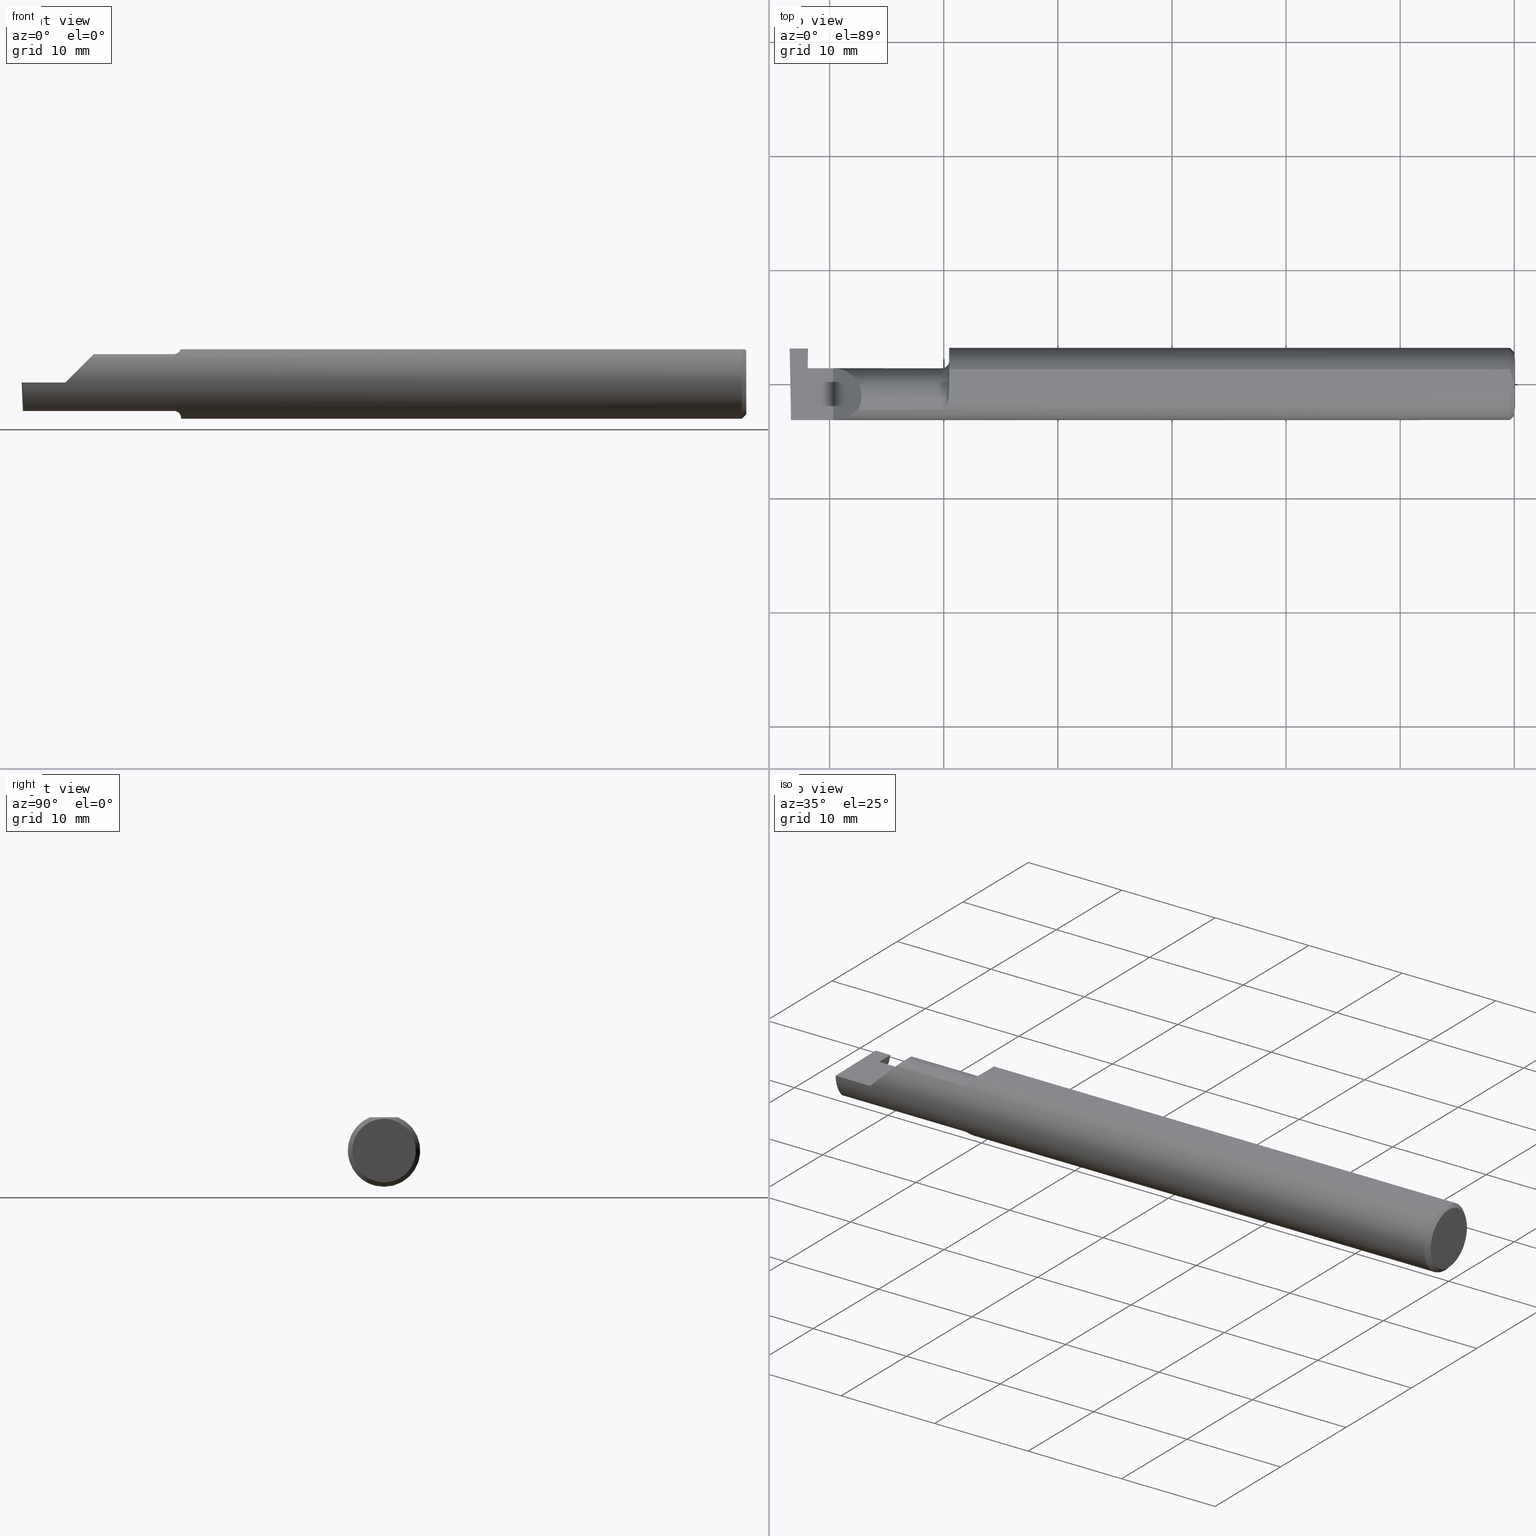
[diagram: canonical four-view strip — front | top / right | iso, engineering-drawing reading convention]
A machine part, canonical four-view strip (front | top / right | iso — engineering-drawing reading convention). The complete STEP part file that produces these views, byte-faithful:
ISO-10303-21;
HEADER;
FILE_DESCRIPTION (( 'STEP AP203' ),
    '1' );
FILE_NAME ('224741-LHGT062Q-8.STEP',
    '2025-07-01T21:48:16',
    ( '' ),
    ( '' ),
    'SwSTEP 2.0',
    'SolidWorks 2024',
    '' );
FILE_SCHEMA (( 'CONFIG_CONTROL_DESIGN' ));
ENDSEC;

DATA;
#1 = DIRECTION ( 'NONE',  ( 0.03699114979480017801, 0.7066228325057372084, 0.7066228325057346549 ) ) ;
#2 = LINE ( 'NONE', #576, #538 ) ;
#3 = ORIENTED_EDGE ( 'NONE', *, *, #304, .T. ) ;
#4 = AXIS2_PLACEMENT_3D ( 'NONE', #770, #574, #775 ) ;
#5 = ORIENTED_EDGE ( 'NONE', *, *, #374, .F. ) ;
#6 = DIRECTION ( 'NONE',  ( 1.224646799147352221E-16, 0.000000000000000000, -1.000000000000000000 ) ) ;
#7 = APPROVAL_ROLE ( '' ) ;
#8 = CARTESIAN_POINT ( 'NONE',  ( -0.01499999999999987454, 0.04895916665957496944, 0.1148500000000000076 ) ) ;
#9 = EDGE_LOOP ( 'NONE', ( #520, #484, #349, #774 ) ) ;
#10 = TOROIDAL_SURFACE ( 'NONE', #614, 0.1230000000000000121, 0.02499999999999980016 ) ;
#11 = EDGE_LOOP ( 'NONE', ( #499, #471, #781, #738, #255, #233 ) ) ;
#12 = LINE ( 'NONE', #619, #134 ) ;
#13 = ORIENTED_EDGE ( 'NONE', *, *, #570, .T. ) ;
#14 = DIRECTION ( 'NONE',  ( 1.000000000000000000, -0.000000000000000000, -0.000000000000000000 ) ) ;
#15 = EDGE_CURVE ( 'NONE', #82, #784, #100, .T. ) ;
#16 = ORIENTED_EDGE ( 'NONE', *, *, #414, .T. ) ;
#17 = VECTOR ( 'NONE', #666, 39.37007874015748143 ) ;
#18 = DIRECTION ( 'NONE',  ( 0.000000000000000000, 0.000000000000000000, 1.000000000000000000 ) ) ;
#19 = ORIENTED_EDGE ( 'NONE', *, *, #758, .T. ) ;
#20 = LINE ( 'NONE', #257, #42 ) ;
#21 = APPROVAL_STATUS ( 'not_yet_approved' ) ;
#22 = CARTESIAN_POINT ( 'NONE',  ( -1.964990549600692527, -0.08554147198584205469, 0.09096407607062373391 ) ) ;
#23 = ORIENTED_EDGE ( 'NONE', *, *, #515, .T. ) ;
#24 = DIRECTION ( 'NONE',  ( 1.000000000000000000, -0.000000000000000000, -0.000000000000000000 ) ) ;
#25 = ADVANCED_FACE ( 'NONE', ( #695 ), #668, .F. ) ;
#26 = DIRECTION ( 'NONE',  ( 1.000000000000000000, -0.000000000000000000, -0.000000000000000000 ) ) ;
#27 = APPLICATION_CONTEXT ( 'configuration controlled 3d designs of mechanical parts and assemblies' ) ;
#28 = CARTESIAN_POINT ( 'NONE',  ( -2.437982208140548224, -2.385405252369068752, -0.02552319679206715292 ) ) ;
#29 =( BOUNDED_CURVE ( )  B_SPLINE_CURVE ( 3, ( #317, #561, #497, #271 ),
 .UNSPECIFIED., .F., .F. ) 
 B_SPLINE_CURVE_WITH_KNOTS ( ( 4, 4 ),
 ( 4.463962699426422986, 4.711356644242685299 ),
 .UNSPECIFIED. ) 
 CURVE ( )  GEOMETRIC_REPRESENTATION_ITEM ( )  RATIONAL_B_SPLINE_CURVE ( ( 1.000000000000000000, 0.9949061863228998437, 0.9949061863228998437, 1.000000000000000000 ) ) 
 REPRESENTATION_ITEM ( '' )  );
#30 = CARTESIAN_POINT ( 'NONE',  ( -2.437982208140546447, 0.05416464901751173039, -0.02403639734835132102 ) ) ;
#31 = EDGE_CURVE ( 'NONE', #428, #485, #327, .T. ) ;
#32 = CARTESIAN_POINT ( 'NONE',  ( -2.350000000000000089, 0.05414999999999988572, 1.836970198721028825E-17 ) ) ;
#33 = AXIS2_PLACEMENT_3D ( 'NONE', #783, #299, #667 ) ;
#34 = CYLINDRICAL_SURFACE ( 'NONE', #408, 0.09800000000000000377 ) ;
#35 = EDGE_CURVE ( 'NONE', #566, #480, #326, .T. ) ;
#36 = DIRECTION ( 'NONE',  ( 7.219510806010324627E-16, 0.9999998142845092364, 0.0006094513490878470654 ) ) ;
#37 = LOCAL_TIME ( 14, 48, 16.00000000000000000, #357 ) ;
#38 = CARTESIAN_POINT ( 'NONE',  ( -1.960226514481664850, -0.07966992494485836129, -0.09623747760188229583 ) ) ;
#39 = LINE ( 'NONE', #390, #105 ) ;
#40 = DIRECTION ( 'NONE',  ( 1.224646799147353207E-16, -1.000000000000000000, 0.000000000000000000 ) ) ;
#41 = CIRCLE ( 'NONE', #286, 0.1248500000000000026 ) ;
#42 = VECTOR ( 'NONE', #200, 39.37007874015748854 ) ;
#43 = CARTESIAN_POINT ( 'NONE',  ( -2.437982208140546891, 0.05115612325138190614, -0.02403823089877876046 ) ) ;
#44 = CARTESIAN_POINT ( 'NONE',  ( -1.951227715916084682, -0.04883822427082837314, -0.1150249279297937549 ) ) ;
#45 = ORIENTED_EDGE ( 'NONE', *, *, #404, .T. ) ;
#46 = PLANE ( 'NONE',  #467 ) ;
#47 = EDGE_CURVE ( 'NONE', #480, #431, #573, .T. ) ;
#48 = DIRECTION ( 'NONE',  ( 0.000000000000000000, 0.000000000000000000, 1.000000000000000000 ) ) ;
#49 = DIMENSIONAL_EXPONENTS ( 1.000000000000000000, 0.000000000000000000, 0.000000000000000000, 0.000000000000000000, 0.000000000000000000, 0.000000000000000000, 0.000000000000000000 ) ;
#50 = ORIENTED_EDGE ( 'NONE', *, *, #106, .F. ) ;
#51 = DIRECTION ( 'NONE',  ( 0.000000000000000000, 0.000000000000000000, 1.000000000000000000 ) ) ;
#52 = DIRECTION ( 'NONE',  ( -0.9991632577875564358, -2.492636860404767688E-05, 0.04089967806759802621 ) ) ;
#53 = ORIENTED_EDGE ( 'NONE', *, *, #204, .T. ) ;
#54 = CARTESIAN_POINT ( 'NONE',  ( -2.494835769263151537, -0.1248351010429638308, -0.03262966116142157480 ) ) ;
#55 = CARTESIAN_POINT ( 'NONE',  ( -2.437982208140548224, -2.385405252369068752, -0.02552319679206715292 ) ) ;
#56 = EDGE_CURVE ( 'NONE', #135, #236, #456, .T. ) ;
#57 = ORIENTED_EDGE ( 'NONE', *, *, #340, .T. ) ;
#58 = CARTESIAN_POINT ( 'NONE',  ( -0.01499999999999999944, 0.000000000000000000, 0.000000000000000000 ) ) ;
#59 = CARTESIAN_POINT ( 'NONE',  ( -1.974999999999999867, -0.04385000000000001397, 0.09800000000000000377 ) ) ;
#60 = CARTESIAN_POINT ( 'NONE',  ( -2.350000000000000089, -0.2000000000000000111, 1.836970198721028825E-17 ) ) ;
#61 = EDGE_LOOP ( 'NONE', ( #112, #383, #363, #209 ) ) ;
#62 = B_SPLINE_CURVE_WITH_KNOTS ( 'NONE', 3,
 ( #584, #279, #514, #396 ),
 .UNSPECIFIED., .F., .F.,
 ( 4, 4 ),
 ( 0.001640801893433564652, 0.002088276671954478626 ),
 .UNSPECIFIED. ) ;
#63 = APPROVAL ( #693, 'UNSPECIFIED' ) ;
#64 = PLANE ( 'NONE',  #596 ) ;
#65 = PERSON_AND_ORGANIZATION ( #123, #377 ) ;
#66 = DIRECTION ( 'NONE',  ( -1.000000000000000000, 0.000000000000000000, 0.000000000000000000 ) ) ;
#67 = VECTOR ( 'NONE', #690, 39.37007874015748143 ) ;
#68 = ORIENTED_EDGE ( 'NONE', *, *, #470, .T. ) ;
#69 = FACE_OUTER_BOUND ( 'NONE', #11, .T. ) ;
#70 = DIRECTION ( 'NONE',  ( -0.03490478697967554916, 0.000000000000000000, -0.9993906422645267851 ) ) ;
#71 =( LENGTH_UNIT ( ) NAMED_UNIT ( * ) SI_UNIT ( $, .METRE. ) );
#72 = VECTOR ( 'NONE', #731, 39.37007874015748854 ) ;
#73 = ORIENTED_EDGE ( 'NONE', *, *, #636, .F. ) ;
#74 = ADVANCED_FACE ( 'NONE', ( #572 ), #506, .T. ) ;
#75 = PERSON_AND_ORGANIZATION_ROLE ( 'design_supplier' ) ;
#76 = TOROIDAL_SURFACE ( 'NONE', #280, 0.1230000000000000121, 0.02499999999999980016 ) ;
#77 = ORIENTED_EDGE ( 'NONE', *, *, #780, .F. ) ;
#78 = ORIENTED_EDGE ( 'NONE', *, *, #360, .T. ) ;
#79 = FACE_OUTER_BOUND ( 'NONE', #412, .T. ) ;
#80 = DIRECTION ( 'NONE',  ( 1.224646799147353207E-16, -1.000000000000000000, 0.000000000000000000 ) ) ;
#81 = ORIENTED_EDGE ( 'NONE', *, *, #734, .T. ) ;
#82 = VERTEX_POINT ( 'NONE', #218 ) ;
#83 = CARTESIAN_POINT ( 'NONE',  ( -1.949999999999999956, -0.04385000000000001397, 0.000000000000000000 ) ) ;
#84 = CARTESIAN_POINT ( 'NONE',  ( -1.951326891871145719, -0.04895916665872705742, 0.1148500000000000076 ) ) ;
#85 = ADVANCED_FACE ( 'NONE', ( #303 ), #760, .F. ) ;
#86 = EDGE_CURVE ( 'NONE', #719, #527, #742, .T. ) ;
#87 = DIRECTION ( 'NONE',  ( 0.000000000000000000, 0.000000000000000000, 1.000000000000000000 ) ) ;
#88 =( BOUNDED_CURVE ( )  B_SPLINE_CURVE ( 3, ( #244, #324, #568, #564 ),
 .UNSPECIFIED., .F., .F. ) 
 B_SPLINE_CURVE_WITH_KNOTS ( ( 4, 4 ),
 ( 0.000000000000000000, 1.570796326794896558 ),
 .UNSPECIFIED. ) 
 CURVE ( )  GEOMETRIC_REPRESENTATION_ITEM ( )  RATIONAL_B_SPLINE_CURVE ( ( 1.000000000000000000, 0.8047378541243649375, 0.8047378541243649375, 1.000000000000000000 ) ) 
 REPRESENTATION_ITEM ( '' )  );
#89 = DATE_TIME_ROLE ( 'creation_date' ) ;
#90 = CARTESIAN_POINT ( 'NONE',  ( -2.263628075281542529, -0.09015216647662421812, 0.08637192471845822617 ) ) ;
#91 = ORIENTED_EDGE ( 'NONE', *, *, #191, .T. ) ;
#92 = LINE ( 'NONE', #681, #148 ) ;
#93 = CALENDAR_DATE ( 2025, 1, 7 ) ;
#94 = CARTESIAN_POINT ( 'NONE',  ( 0.000000000000000000, 0.000000000000000000, 0.000000000000000000 ) ) ;
#95 = LINE ( 'NONE', #588, #288 ) ;
#96 = B_SPLINE_CURVE_WITH_KNOTS ( 'NONE', 3,
 ( #348, #394, #99, #104, #339, #38, #283, #518, #771, #589, #44, #229 ),
 .UNSPECIFIED., .F., .F.,
 ( 4, 2, 2, 2, 2, 4 ),
 ( 1.963988863383734834E-07, 0.0002052720857047456236, 0.0004103477725231529033, 0.0008204991461599568919, 0.001230650519796760555, 0.001640801893433564652 ),
 .UNSPECIFIED. ) ;
#97 = CARTESIAN_POINT ( 'NONE',  ( -1.974999999999999867, -0.04385000000000001397, 0.000000000000000000 ) ) ;
#98 = CARTESIAN_POINT ( 'NONE',  ( -1.950000000000000178, -0.04385000000000001397, 0.000000000000000000 ) ) ;
#99 = CARTESIAN_POINT ( 'NONE',  ( -1.969784064659362954, -0.08911389870154516613, -0.08746251087962811366 ) ) ;
#100 = CIRCLE ( 'NONE', #617, 0.02499999999999980016 ) ;
#101 = DIRECTION ( 'NONE',  ( 0.000000000000000000, -0.7071067811865462405, 0.7071067811865487940 ) ) ;
#102 = CARTESIAN_POINT ( 'NONE',  ( -2.437982208140546891, 0.1138861372810479888, -0.02400000000000000397 ) ) ;
#103 = DIRECTION ( 'NONE',  ( -0.01744642479411464761, 0.9998477995484629233, -2.135106780035675284E-18 ) ) ;
#104 = CARTESIAN_POINT ( 'NONE',  ( -1.965875432832431491, -0.08647060418110406876, -0.09007670266896511402 ) ) ;
#105 = VECTOR ( 'NONE', #343, 39.37007874015748854 ) ;
#106 = EDGE_CURVE ( 'NONE', #321, #542, #700, .T. ) ;
#107 = EDGE_CURVE ( 'NONE', #236, #480, #2, .T. ) ;
#108 = ORIENTED_EDGE ( 'NONE', *, *, #734, .F. ) ;
#109 = CARTESIAN_POINT ( 'NONE',  ( -0.004999999999999990563, -1.358826068685392540E-17, 0.1148500000000000076 ) ) ;
#110 = VERTEX_POINT ( 'NONE', #30 ) ;
#111 = AXIS2_PLACEMENT_3D ( 'NONE', #736, #663, #682 ) ;
#112 = ORIENTED_EDGE ( 'NONE', *, *, #174, .F. ) ;
#113 = EDGE_CURVE ( 'NONE', #82, #358, #750, .T. ) ;
#114 = VECTOR ( 'NONE', #1, 39.37007874015748143 ) ;
#115 = ORIENTED_EDGE ( 'NONE', *, *, #204, .F. ) ;
#116 = CARTESIAN_POINT ( 'NONE',  ( -2.350000000000000089, -0.2000000000000000111, 1.836970198721028825E-17 ) ) ;
#117 = DIRECTION ( 'NONE',  ( 1.000000000000000000, -0.000000000000000000, -0.000000000000000000 ) ) ;
#118 = CARTESIAN_POINT ( 'NONE',  ( -1.950756598855983848, -0.04385000000000002091, -0.1168961077196328247 ) ) ;
#119 = DIRECTION ( 'NONE',  ( 1.000000000000000000, -0.000000000000000000, -0.000000000000000000 ) ) ;
#120 = VERTEX_POINT ( 'NONE', #8 ) ;
#121 = CARTESIAN_POINT ( 'NONE',  ( -2.437930235369751841, 0.1148789462830859531, -0.02300719099796203621 ) ) ;
#122 = CARTESIAN_POINT ( 'NONE',  ( -2.500000000000000000, 0.03988613728104772188, -0.09800000000000000377 ) ) ;
#123 = PERSON ( 'UNSPECIFIED', 'UNSPECIFIED', 'UNSPECIFIED', ('UNSPECIFIED'), ('UNSPECIFIED'), ('UNSPECIFIED') ) ;
#124 = VERTEX_POINT ( 'NONE', #483 ) ;
#125 = DIRECTION ( 'NONE',  ( 0.000000000000000000, 0.000000000000000000, 1.000000000000000000 ) ) ;
#126 = CARTESIAN_POINT ( 'NONE',  ( -1.950000000000000178, 0.000000000000000000, 0.000000000000000000 ) ) ;
#127 = CARTESIAN_POINT ( 'NONE',  ( -0.005947935873631213927, 0.01679708999422687907, 0.1148500000000000076 ) ) ;
#128 = ORIENTED_EDGE ( 'NONE', *, *, #86, .T. ) ;
#129 = ADVANCED_FACE ( 'NONE', ( #450 ), #164, .F. ) ;
#130 = EDGE_CURVE ( 'NONE', #140, #124, #341, .T. ) ;
#131 = ORIENTED_EDGE ( 'NONE', *, *, #787, .F. ) ;
#132 = CARTESIAN_POINT ( 'NONE',  ( -2.443418903665495634, 0.05424136207626868017, -0.1499086997478103478 ) ) ;
#133 = APPROVAL_STATUS ( 'not_yet_approved' ) ;
#134 = VECTOR ( 'NONE', #429, 39.37007874015748143 ) ;
#135 = VERTEX_POINT ( 'NONE', #225 ) ;
#136 = CARTESIAN_POINT ( 'NONE',  ( 1.493979371535144102E-17, -9.778804691191602334E-18, 0.000000000000000000 ) ) ;
#137 = APPROVAL_DATE_TIME ( #201, #765 ) ;
#138 = AXIS2_PLACEMENT_3D ( 'NONE', #462, #336, #48 ) ;
#139 = ADVANCED_FACE ( 'NONE', ( #291 ), #34, .T. ) ;
#140 = VERTEX_POINT ( 'NONE', #526 ) ;
#141 = FACE_OUTER_BOUND ( 'NONE', #769, .T. ) ;
#142 = SECURITY_CLASSIFICATION_LEVEL ( 'unclassified' ) ;
#143 = ADVANCED_FACE ( 'NONE', ( #705 ), #76, .F. ) ;
#144 = EDGE_CURVE ( 'NONE', #784, #590, #207, .T. ) ;
#145 = CARTESIAN_POINT ( 'NONE',  ( -1.950400391910593223, -0.01449986171080064334, 0.1148500000000000076 ) ) ;
#146 = VERTEX_POINT ( 'NONE', #638 ) ;
#147 = ORIENTED_EDGE ( 'NONE', *, *, #174, .T. ) ;
#148 = VECTOR ( 'NONE', #26, 39.37007874015748143 ) ;
#149 = CARTESIAN_POINT ( 'NONE',  ( -1.952489051389807884, -0.05793447593674593693, 0.1110239341513688666 ) ) ;
#150 = ORIENTED_EDGE ( 'NONE', *, *, #586, .T. ) ;
#151 = CARTESIAN_POINT ( 'NONE',  ( -0.004999999999999963675, -0.008410771716546847077, 0.1148500000000000215 ) ) ;
#152 = CALENDAR_DATE ( 2025, 1, 7 ) ;
#153 = VERTEX_POINT ( 'NONE', #102 ) ;
#154 = CARTESIAN_POINT ( 'NONE',  ( -2.263628075281542529, -0.09015216647662421812, 0.08637192471845822617 ) ) ;
#155 = LINE ( 'NONE', #391, #373 ) ;
#156 = AXIS2_PLACEMENT_3D ( 'NONE', #662, #735, #605 ) ;
#157 = CARTESIAN_POINT ( 'NONE',  ( -1.949999999999999956, 0.05414999999999998981, 6.735557395310438818E-17 ) ) ;
#158 = DIRECTION ( 'NONE',  ( 0.000000000000000000, 0.000000000000000000, 1.000000000000000000 ) ) ;
#159 = FACE_OUTER_BOUND ( 'NONE', #628, .T. ) ;
#160 = DIRECTION ( 'NONE',  ( -0.05230942393460377010, 0.000000000000000000, -0.9986309249005007604 ) ) ;
#161 = DESIGN_CONTEXT ( 'detailed design', #739, 'design' ) ;
#162 = CARTESIAN_POINT ( 'NONE',  ( -2.497382703856816377, 0.1221956850741156286, -0.09996573249755572044 ) ) ;
#163 = LOCAL_TIME ( 14, 48, 16.00000000000000000, #322 ) ;
#164 = PLANE ( 'NONE',  #687 ) ;
#165 = EDGE_CURVE ( 'NONE', #153, #509, #582, .T. ) ;
#166 = EDGE_CURVE ( 'NONE', #527, #428, #155, .T. ) ;
#167 = ORIENTED_EDGE ( 'NONE', *, *, #393, .T. ) ;
#168 = CARTESIAN_POINT ( 'NONE',  ( -1.951362484150213072, -0.04555293709188903972, 0.1148500000000000076 ) ) ;
#169 = DIRECTION ( 'NONE',  ( -1.000000000000000000, 0.000000000000000000, 0.000000000000000000 ) ) ;
#170 = VECTOR ( 'NONE', #717, 39.37007874015748143 ) ;
#171 = ORIENTED_EDGE ( 'NONE', *, *, #470, .F. ) ;
#172 = CARTESIAN_POINT ( 'NONE',  ( -2.495690077103728921, -0.1248499999950965084, 1.733801157256528502E-17 ) ) ;
#173 = VECTOR ( 'NONE', #583, 39.37007874015748143 ) ;
#174 = EDGE_CURVE ( 'NONE', #431, #784, #351, .T. ) ;
#175 = CLOSED_SHELL ( 'NONE', ( #403, #252, #702, #143, #721, #74, #672, #285, #25, #644, #331, #284, #139, #85, #645, #441, #463, #275, #129, #757, #608, #232 ) ) ;
#176 = VERTEX_POINT ( 'NONE', #648 ) ;
#177 = CARTESIAN_POINT ( 'NONE',  ( -1.950000000000000178, 0.0001781444078671173391, 0.1148500000000000076 ) ) ;
#178 =( NAMED_UNIT ( * ) SI_UNIT ( $, .STERADIAN. ) SOLID_ANGLE_UNIT ( ) );
#179 = EDGE_LOOP ( 'NONE', ( #263, #78, #150, #203, #53, #691, #213 ) ) ;
#180 = DIRECTION ( 'NONE',  ( -1.000000000000000000, 0.000000000000000000, 0.000000000000000000 ) ) ;
#181 = VECTOR ( 'NONE', #222, 39.37007874015748854 ) ;
#182 = AXIS2_PLACEMENT_3D ( 'NONE', #162, #335, #395 ) ;
#183 = ORIENTED_EDGE ( 'NONE', *, *, #684, .F. ) ;
#184 = DIRECTION ( 'NONE',  ( 0.000000000000000000, 1.000000000000000000, 0.000000000000000000 ) ) ;
#185 = CARTESIAN_POINT ( 'NONE',  ( -2.205999999999999961, -0.09015216647662482874, -0.08637192471845768493 ) ) ;
#186 = PERSON_AND_ORGANIZATION_ROLE ( 'design_owner' ) ;
#187 = CARTESIAN_POINT ( 'NONE',  ( -2.350000000000000089, -0.1248500000000000026, 1.836970198721028825E-17 ) ) ;
#188 = ORIENTED_EDGE ( 'NONE', *, *, #758, .F. ) ;
#189 = CARTESIAN_POINT ( 'NONE',  ( 0.000000000000000000, -0.04895916665957456698, 0.1148500000000000076 ) ) ;
#190 = CALENDAR_DATE ( 2025, 1, 7 ) ;
#191 = EDGE_CURVE ( 'NONE', #746, #301, #62, .T. ) ;
#192 = CARTESIAN_POINT ( 'NONE',  ( -2.252000000000000668, -0.06008937020638503712, 0.09799999999999998990 ) ) ;
#193 = ORIENTED_EDGE ( 'NONE', *, *, #711, .F. ) ;
#194 = ORIENTED_EDGE ( 'NONE', *, *, #262, .F. ) ;
#195 = CARTESIAN_POINT ( 'NONE',  ( -0.01499999999999999944, 0.000000000000000000, 0.000000000000000000 ) ) ;
#196 = PLANE ( 'NONE',  #587 ) ;
#197 = PLANE ( 'NONE',  #277 ) ;
#198 = VERTEX_POINT ( 'NONE', #109 ) ;
#199 = DIRECTION ( 'NONE',  ( 0.000000000000000000, 0.000000000000000000, -1.000000000000000000 ) ) ;
#200 = DIRECTION ( 'NONE',  ( -0.01742050049977935181, -0.9998482515673751125, -2.130797594925150286E-18 ) ) ;
#201 = DATE_AND_TIME ( #93, #409 ) ;
#202 = ORIENTED_EDGE ( 'NONE', *, *, #787, .T. ) ;
#203 = ORIENTED_EDGE ( 'NONE', *, *, #500, .T. ) ;
#204 = EDGE_CURVE ( 'NONE', #563, #744, #592, .T. ) ;
#205 = CARTESIAN_POINT ( 'NONE',  ( -2.440353341463135983, 0.03970102213383023410, -0.06931214282740405519 ) ) ;
#206 = PERSON_AND_ORGANIZATION ( #123, #377 ) ;
#207 = CIRCLE ( 'NONE', #138, 0.09800000000000000377 ) ;
#208 = LOCAL_TIME ( 14, 48, 16.00000000000000000, #325 ) ;
#209 = ORIENTED_EDGE ( 'NONE', *, *, #622, .T. ) ;
#210 = LINE ( 'NONE', #487, #67 ) ;
#211 = DIRECTION ( 'NONE',  ( 0.000000000000000000, 0.000000000000000000, 1.000000000000000000 ) ) ;
#212 = CC_DESIGN_PERSON_AND_ORGANIZATION_ASSIGNMENT ( #206, #634, ( #646 ) ) ;
#213 = ORIENTED_EDGE ( 'NONE', *, *, #166, .T. ) ;
#214 = CARTESIAN_POINT ( 'NONE',  ( -1.950000000000000178, -0.1248500000000000165, 0.1148500000000000076 ) ) ;
#215 = AXIS2_PLACEMENT_3D ( 'NONE', #83, #14, #18 ) ;
#216 = CARTESIAN_POINT ( 'NONE',  ( -2.399999999999999911, 0.1221499999999999808, -3.306546357697866753E-19 ) ) ;
#217 = DATE_AND_TIME ( #152, #571 ) ;
#218 = CARTESIAN_POINT ( 'NONE',  ( -1.951365755776839572, -0.04385000000000001397, 0.1148500000000000076 ) ) ;
#219 = VECTOR ( 'NONE', #469, 39.37007874015748854 ) ;
#220 = CARTESIAN_POINT ( 'NONE',  ( 1.493979371535144102E-17, -1.437123018799419134E-17, 0.1098499999999999893 ) ) ;
#221 = PERSON_AND_ORGANIZATION_ROLE ( 'creator' ) ;
#222 = DIRECTION ( 'NONE',  ( 0.03042981077198583101, -0.3254173858243484818, -0.9450807116958995779 ) ) ;
#223 = EDGE_CURVE ( 'NONE', #542, #410, #355, .T. ) ;
#224 = DIRECTION ( 'NONE',  ( -1.000000000000000000, 0.000000000000000000, 0.000000000000000000 ) ) ;
#225 = CARTESIAN_POINT ( 'NONE',  ( -1.951326891871145719, -0.04895916665872705742, 0.1148500000000000076 ) ) ;
#226 = AXIS2_PLACEMENT_3D ( 'NONE', #594, #180, #407 ) ;
#227 = CARTESIAN_POINT ( 'NONE',  ( -2.495997960279815686, 0.03988613728104775658, -0.09799999999999996214 ) ) ;
#228 = CC_DESIGN_PERSON_AND_ORGANIZATION_ASSIGNMENT ( #553, #221, ( #496 ) ) ;
#229 = CARTESIAN_POINT ( 'NONE',  ( -1.950756598855983848, -0.04385000000000002091, -0.1168961077196328247 ) ) ;
#230 = EDGE_CURVE ( 'NONE', #243, #746, #96, .T. ) ;
#231 = CARTESIAN_POINT ( 'NONE',  ( -2.494380489674781209, -0.1999019447116721915, 6.881915332554903690E-19 ) ) ;
#232 = ADVANCED_FACE ( 'NONE', ( #776 ), #522, .F. ) ;
#233 = ORIENTED_EDGE ( 'NONE', *, *, #550, .T. ) ;
#234 = DIRECTION ( 'NONE',  ( 0.000000000000000000, 0.000000000000000000, 1.000000000000000000 ) ) ;
#235 = DIRECTION ( 'NONE',  ( 0.000000000000000000, 0.000000000000000000, 1.000000000000000000 ) ) ;
#236 = VERTEX_POINT ( 'NONE', #773 ) ;
#237 = DIRECTION ( 'NONE',  ( 0.000000000000000000, 0.000000000000000000, -1.000000000000000000 ) ) ;
#238 = B_SPLINE_CURVE_WITH_KNOTS ( 'NONE', 3,
 ( #446, #151, #268, #501, #265, #491 ),
 .UNSPECIFIED., .F., .F.,
 ( 4, 2, 4 ),
 ( 0.003658435455108829341, 0.004289327297787135992, 0.004920219140465443078 ),
 .UNSPECIFIED. ) ;
#239 = ORIENTED_EDGE ( 'NONE', *, *, #106, .T. ) ;
#240 = DIRECTION ( 'NONE',  ( -0.9992391710281356421, 0.01740988840157186093, 0.03489949668475363781 ) ) ;
#241 = FACE_OUTER_BOUND ( 'NONE', #547, .T. ) ;
#242 = VECTOR ( 'NONE', #119, 39.37007874015748143 ) ;
#243 = VERTEX_POINT ( 'NONE', #472 ) ;
#244 = CARTESIAN_POINT ( 'NONE',  ( -2.252000000000000668, -0.04385000000000001397, 0.09800000000000000377 ) ) ;
#245 = CARTESIAN_POINT ( 'NONE',  ( -0.01499999999999987454, 0.04895916665957496944, 0.1148500000000000076 ) ) ;
#246 = ORIENTED_EDGE ( 'NONE', *, *, #421, .T. ) ;
#247 = DIRECTION ( 'NONE',  ( -1.000000000000000000, 0.000000000000000000, 0.000000000000000000 ) ) ;
#248 = APPLICATION_PROTOCOL_DEFINITION ( 'international standard', 'config_control_design', 1994, #27 ) ;
#249 = VECTOR ( 'NONE', #103, 39.37007874015748854 ) ;
#250 = ORIENTED_EDGE ( 'NONE', *, *, #251, .F. ) ;
#251 = EDGE_CURVE ( 'NONE', #120, #140, #41, .T. ) ;
#252 = ADVANCED_FACE ( 'NONE', ( #481 ), #302, .T. ) ;
#253 = LINE ( 'NONE', #121, #114 ) ;
#254 = CARTESIAN_POINT ( 'NONE',  ( -1.972502509400819060, -0.09015216647698111319, 0.08637192471808595451 ) ) ;
#255 = ORIENTED_EDGE ( 'NONE', *, *, #113, .T. ) ;
#256 = ORIENTED_EDGE ( 'NONE', *, *, #330, .T. ) ;
#257 = CARTESIAN_POINT ( 'NONE',  ( -2.442630281473412435, -0.2009995608920633059, 7.025764216157016034E-18 ) ) ;
#258 = LINE ( 'NONE', #488, #219 ) ;
#259 = ORIENTED_EDGE ( 'NONE', *, *, #414, .F. ) ;
#260 = DIRECTION ( 'NONE',  ( -3.281464135181334986E-15, -0.9999998142845093474, -0.0006094513490877563177 ) ) ;
#261 = AXIS2_PLACEMENT_3D ( 'NONE', #601, #6, #540 ) ;
#262 = EDGE_CURVE ( 'NONE', #124, #135, #782, .T. ) ;
#263 = ORIENTED_EDGE ( 'NONE', *, *, #340, .F. ) ;
#264 = ORIENTED_EDGE ( 'NONE', *, *, #622, .F. ) ;
#265 = CARTESIAN_POINT ( 'NONE',  ( -0.01195732443765547791, -0.04120008761723505802, 0.1148500000000000076 ) ) ;
#266 = CALENDAR_DATE ( 2025, 1, 7 ) ;
#267 = ORIENTED_EDGE ( 'NONE', *, *, #515, .F. ) ;
#268 = CARTESIAN_POINT ( 'NONE',  ( -0.005932194444709712640, -0.01671525318617311795, 0.1148499999999999938 ) ) ;
#269 = DIRECTION ( 'NONE',  ( 1.000000000000000000, -0.000000000000000000, -0.000000000000000000 ) ) ;
#270 = VERTEX_POINT ( 'NONE', #353 ) ;
#271 = CARTESIAN_POINT ( 'NONE',  ( -2.436999999999999833, 0.05414999123725500879, -4.144270477499288293E-05 ) ) ;
#272 = CARTESIAN_POINT ( 'NONE',  ( -1.974999999999999867, -0.09015216647662482874, 0.08637192471845768493 ) ) ;
#273 = LINE ( 'NONE', #510, #308 ) ;
#274 = EDGE_CURVE ( 'NONE', #176, #243, #475, .T. ) ;
#275 = ADVANCED_FACE ( 'NONE', ( #670 ), #64, .F. ) ;
#276 = CARTESIAN_POINT ( 'NONE',  ( -1.951365755776839572, -0.04385000000000001397, 0.1148500000000000076 ) ) ;
#277 = AXIS2_PLACEMENT_3D ( 'NONE', #55, #52, #786 ) ;
#278 = CARTESIAN_POINT ( 'NONE',  ( -2.436999999999999833, 0.1221499999999999808, -3.306546357697866753E-19 ) ) ;
#279 = CARTESIAN_POINT ( 'NONE',  ( -1.950242610568498236, -0.03840785182185597196, -0.1189375631818110762 ) ) ;
#280 = AXIS2_PLACEMENT_3D ( 'NONE', #97, #528, #344 ) ;
#281 = ORIENTED_EDGE ( 'NONE', *, *, #361, .F. ) ;
#282 = DIRECTION ( 'NONE',  ( -1.000000000000000000, 0.000000000000000000, 0.000000000000000000 ) ) ;
#283 = CARTESIAN_POINT ( 'NONE',  ( -1.958278800716857448, -0.07573621487658313556, -0.09938639293507189887 ) ) ;
#284 = ADVANCED_FACE ( 'NONE', ( #423 ), #740, .T. ) ;
#285 = ADVANCED_FACE ( 'NONE', ( #730 ), #298, .F. ) ;
#286 = AXIS2_PLACEMENT_3D ( 'NONE', #58, #247, #306 ) ;
#287 = LINE ( 'NONE', #157, #173 ) ;
#288 = VECTOR ( 'NONE', #458, 39.37007874015748143 ) ;
#289 = DIRECTION ( 'NONE',  ( 1.000000000000000000, -0.000000000000000000, -0.000000000000000000 ) ) ;
#290 = LINE ( 'NONE', #707, #170 ) ;
#291 = FACE_OUTER_BOUND ( 'NONE', #61, .T. ) ;
#292 = ORIENTED_EDGE ( 'NONE', *, *, #56, .T. ) ;
#293 = DIRECTION ( 'NONE',  ( 0.03866673033866221965, 0.3253246823342271221, 0.9448114812114907224 ) ) ;
#294 = VERTEX_POINT ( 'NONE', #415 ) ;
#295 = EDGE_CURVE ( 'NONE', #485, #719, #543, .T. ) ;
#296 = CARTESIAN_POINT ( 'NONE',  ( -0.01193974418109659125, 0.04115525648180411861, 0.1148500000000000215 ) ) ;
#297 = ORIENTED_EDGE ( 'NONE', *, *, #585, .F. ) ;
#298 = PLANE ( 'NONE',  #261 ) ;
#299 = DIRECTION ( 'NONE',  ( -1.000000000000000000, -1.224646799147353207E-16, -0.000000000000000000 ) ) ;
#300 = EDGE_LOOP ( 'NONE', ( #194, #259, #77, #743, #310, #604, #754 ) ) ;
#301 = VERTEX_POINT ( 'NONE', #779 ) ;
#302 = CYLINDRICAL_SURFACE ( 'NONE', #156, 0.09800000000000000377 ) ;
#303 = FACE_OUTER_BOUND ( 'NONE', #748, .T. ) ;
#304 = EDGE_CURVE ( 'NONE', #719, #294, #253, .T. ) ;
#305 = ORIENTED_EDGE ( 'NONE', *, *, #223, .T. ) ;
#306 = DIRECTION ( 'NONE',  ( 0.000000000000000000, 0.000000000000000000, 1.000000000000000000 ) ) ;
#307 = CARTESIAN_POINT ( 'NONE',  ( -0.004999999999999962808, 0.008410227287019789166, 0.1148500000000000076 ) ) ;
#308 = VECTOR ( 'NONE', #647, 39.37007874015748854 ) ;
#309 = DIRECTION ( 'NONE',  ( 0.000000000000000000, 0.000000000000000000, 1.000000000000000000 ) ) ;
#310 = ORIENTED_EDGE ( 'NONE', *, *, #701, .F. ) ;
#311 = EDGE_LOOP ( 'NONE', ( #688, #422, #753 ) ) ;
#312 = DIRECTION ( 'NONE',  ( 1.000000000000000000, -0.000000000000000000, -0.000000000000000000 ) ) ;
#313 = AXIS2_PLACEMENT_3D ( 'NONE', #195, #680, #199 ) ;
#314 = VERTEX_POINT ( 'NONE', #720 ) ;
#315 = DIRECTION ( 'NONE',  ( 0.000000000000000000, 0.000000000000000000, 1.000000000000000000 ) ) ;
#316 = VECTOR ( 'NONE', #334, 39.37007874015748143 ) ;
#317 = CARTESIAN_POINT ( 'NONE',  ( -2.437982208140546891, 0.05115612325138190614, -0.02403823089877876046 ) ) ;
#318 = APPROVAL_DATE_TIME ( #440, #63 ) ;
#319 = APPROVAL_PERSON_ORGANIZATION ( #492, #63, #333 ) ;
#320 = VERTEX_POINT ( 'NONE', #172 ) ;
#321 = VERTEX_POINT ( 'NONE', #676 ) ;
#322 = COORDINATED_UNIVERSAL_TIME_OFFSET ( 8, 0, .BEHIND. ) ;
#323 = ORIENTED_EDGE ( 'NONE', *, *, #223, .F. ) ;
#324 = CARTESIAN_POINT ( 'NONE',  ( -2.252000000000000668, 0.01355707088743670317, 0.09799999999999996214 ) ) ;
#325 = COORDINATED_UNIVERSAL_TIME_OFFSET ( 8, 0, .BEHIND. ) ;
#326 =( BOUNDED_CURVE ( )  B_SPLINE_CURVE ( 3, ( #187, #565, #631, #389 ),
 .UNSPECIFIED., .F., .T. ) 
 B_SPLINE_CURVE_WITH_KNOTS ( ( 4, 4 ),
 ( 4.712388980384690562, 5.476375539154175520 ),
 .UNSPECIFIED. ) 
 CURVE ( )  GEOMETRIC_REPRESENTATION_ITEM ( )  RATIONAL_B_SPLINE_CURVE ( ( 1.000000000000000000, 0.9519489620492029847, 0.9519489620492029847, 1.000000000000000000 ) ) 
 REPRESENTATION_ITEM ( '' )  );
#327 = LINE ( 'NONE', #442, #242 ) ;
#328 = CARTESIAN_POINT ( 'NONE',  ( -2.252000000000000668, -0.04385000000000001397, 0.09800000000000000377 ) ) ;
#329 = CARTESIAN_POINT ( 'NONE',  ( -1.966486677516400494, -0.08696861555842282099, 0.08959154238194093345 ) ) ;
#330 = EDGE_CURVE ( 'NONE', #301, #314, #454, .T. ) ;
#331 = ADVANCED_FACE ( 'NONE', ( #657 ), #382, .F. ) ;
#332 = CARTESIAN_POINT ( 'NONE',  ( -1.951349474474288082, -0.04725615793095110095, 0.1148499999999999938 ) ) ;
#333 = APPROVAL_ROLE ( '' ) ;
#334 = DIRECTION ( 'NONE',  ( 1.000000000000000000, -3.281539380878421255E-15, 1.224646799147352221E-16 ) ) ;
#335 = DIRECTION ( 'NONE',  ( 0.9995051766793262571, 0.01744044634007211117, 0.02617694830739122208 ) ) ;
#336 = DIRECTION ( 'NONE',  ( -1.000000000000000000, 0.000000000000000000, 0.000000000000000000 ) ) ;
#337 = VECTOR ( 'NONE', #482, 39.37007874015748143 ) ;
#338 = PLANE ( 'NONE',  #350 ) ;
#339 = CARTESIAN_POINT ( 'NONE',  ( -1.964311064734461709, -0.08485061678078631431, -0.09161469295857084527 ) ) ;
#340 = EDGE_CURVE ( 'NONE', #176, #428, #474, .T. ) ;
#341 = CIRCLE ( 'NONE', #581, 0.1248500000000000026 ) ;
#342 = SECURITY_CLASSIFICATION ( '', '', #142 ) ;
#343 = DIRECTION ( 'NONE',  ( -0.02617296143184116158, -0.0004568507411563384147, 0.9996573249755575929 ) ) ;
#344 = DIRECTION ( 'NONE',  ( 0.000000000000000000, 0.000000000000000000, 1.000000000000000000 ) ) ;
#345 = CC_DESIGN_DATE_AND_TIME_ASSIGNMENT ( #217, #89, ( #496 ) ) ;
#346 = LINE ( 'NONE', #449, #626 ) ;
#347 = AXIS2_PLACEMENT_3D ( 'NONE', #136, #620, #80 ) ;
#348 = CARTESIAN_POINT ( 'NONE',  ( -1.974999999999999867, -0.09015216647662478711, -0.08637192471845771269 ) ) ;
#349 = ORIENTED_EDGE ( 'NONE', *, *, #660, .F. ) ;
#350 = AXIS2_PLACEMENT_3D ( 'NONE', #580, #101, #772 ) ;
#351 = LINE ( 'NONE', #652, #413 ) ;
#352 = ORIENTED_EDGE ( 'NONE', *, *, #374, .T. ) ;
#353 = CARTESIAN_POINT ( 'NONE',  ( -2.495688583004118666, -0.1248499869621840785, -5.705736120969982501E-05 ) ) ;
#354 = EDGE_LOOP ( 'NONE', ( #13, #632, #264, #555 ) ) ;
#355 = CIRCLE ( 'NONE', #664, 0.09800000000000000377 ) ;
#356 = CARTESIAN_POINT ( 'NONE',  ( -2.494033449660867152, -0.09015216647662482874, -0.08637192471845768493 ) ) ;
#357 = COORDINATED_UNIVERSAL_TIME_OFFSET ( 8, 0, .BEHIND. ) ;
#358 = VERTEX_POINT ( 'NONE', #177 ) ;
#359 = CARTESIAN_POINT ( 'NONE',  ( -2.494256244271084721, -0.1126860773865890480, -0.06285177167860772629 ) ) ;
#360 = EDGE_CURVE ( 'NONE', #176, #270, #712, .T. ) ;
#361 = EDGE_CURVE ( 'NONE', #431, #609, #88, .T. ) ;
#362 = DIRECTION ( 'NONE',  ( 0.7071067811865492381, 0.000000000000000000, -0.7071067811865459074 ) ) ;
#363 = ORIENTED_EDGE ( 'NONE', *, *, #107, .F. ) ;
#364 = DIRECTION ( 'NONE',  ( -1.000000000000000000, 0.000000000000000000, 0.000000000000000000 ) ) ;
#365 = APPLICATION_PROTOCOL_DEFINITION ( 'international standard', 'config_control_design', 1994, #739 ) ;
#366 = CARTESIAN_POINT ( 'NONE',  ( -2.499999999999999112, 0.05415000000000022573, 1.021359390568321722E-31 ) ) ;
#367 = ORIENTED_EDGE ( 'NONE', *, *, #636, .T. ) ;
#368 = CARTESIAN_POINT ( 'NONE',  ( -2.494082244196984099, -0.07583965973232818791, -0.09404455760388209795 ) ) ;
#369 = APPROVAL_DATE_TIME ( #677, #708 ) ;
#370 = ORIENTED_EDGE ( 'NONE', *, *, #35, .F. ) ;
#371 = CIRCLE ( 'NONE', #33, 0.1098499999999999893 ) ;
#372 = EDGE_LOOP ( 'NONE', ( #489, #297, #728, #128, #183 ) ) ;
#373 = VECTOR ( 'NONE', #643, 39.37007874015748854 ) ;
#374 = EDGE_CURVE ( 'NONE', #473, #410, #29, .T. ) ;
#375 = LINE ( 'NONE', #505, #759 ) ;
#376 = PERSON_AND_ORGANIZATION_ROLE ( 'classification_officer' ) ;
#377 = ORGANIZATION ( 'UNSPECIFIED', 'UNSPECIFIED', '' ) ;
#378 = ORIENTED_EDGE ( 'NONE', *, *, #166, .F. ) ;
#379 = DIRECTION ( 'NONE',  ( 0.000000000000000000, 1.000000000000000000, -0.000000000000000000 ) ) ;
#380 = AXIS2_PLACEMENT_3D ( 'NONE', #457, #713, #40 ) ;
#381 = ORIENTED_EDGE ( 'NONE', *, *, #274, .F. ) ;
#382 = TOROIDAL_SURFACE ( 'NONE', #694, 0.1230000000000000121, 0.02499999999999980016 ) ;
#383 = ORIENTED_EDGE ( 'NONE', *, *, #47, .F. ) ;
#384 = CARTESIAN_POINT ( 'NONE',  ( -2.441853376795601882, -0.04385000000000004172, -0.09799999999999998990 ) ) ;
#385 = DIRECTION ( 'NONE',  ( 0.7071067811865459074, 0.000000000000000000, 0.7071067811865492381 ) ) ;
#386 = EDGE_CURVE ( 'NONE', #509, #321, #20, .T. ) ;
#387 = ORIENTED_EDGE ( 'NONE', *, *, #660, .T. ) ;
#388 = APPROVAL_ROLE ( '' ) ;
#389 = CARTESIAN_POINT ( 'NONE',  ( -2.263628075281542529, -0.09015216647662421812, 0.08637192471845822617 ) ) ;
#390 = CARTESIAN_POINT ( 'NONE',  ( -2.493072779947982820, -0.1248043149033065402, -0.09996577117162359916 ) ) ;
#391 = CARTESIAN_POINT ( 'NONE',  ( -2.496652745773396020, 0.07741163850316090667, -0.09800000000000001765 ) ) ;
#392 = DIRECTION ( 'NONE',  ( -1.000000000000000000, 0.000000000000000000, 0.000000000000000000 ) ) ;
#393 = EDGE_CURVE ( 'NONE', #509, #563, #375, .T. ) ;
#394 = CARTESIAN_POINT ( 'NONE',  ( -1.972259638933031578, -0.09015216647662445404, -0.08637192471845808739 ) ) ;
#395 = DIRECTION ( 'NONE',  ( -0.02618093032612054533, 0.000000000000000000, 0.9996572206948034500 ) ) ;
#396 = CARTESIAN_POINT ( 'NONE',  ( -1.950000000000000178, -0.02715330672748003313, -0.1218614805168695830 ) ) ;
#397 =( BOUNDED_CURVE ( )  B_SPLINE_CURVE ( 3, ( #384, #755, #205, #435 ),
 .UNSPECIFIED., .F., .F. ) 
 B_SPLINE_CURVE_WITH_KNOTS ( ( 4, 4 ),
 ( 3.140983202202990654, 4.463962699426419434 ),
 .UNSPECIFIED. ) 
 CURVE ( )  GEOMETRIC_REPRESENTATION_ITEM ( )  RATIONAL_B_SPLINE_CURVE ( ( 1.000000000000000000, 0.8593853101475608103, 0.8593853101475608103, 1.000000000000000000 ) ) 
 REPRESENTATION_ITEM ( '' )  );
#398 = CARTESIAN_POINT ( 'NONE',  ( -0.01499999999999999944, 0.000000000000000000, 0.000000000000000000 ) ) ;
#399 = CARTESIAN_POINT ( 'NONE',  ( -1.949999999999999956, -0.04385000000000001397, 0.000000000000000000 ) ) ;
#400 = EDGE_LOOP ( 'NONE', ( #23, #19, #239, #305, #202 ) ) ;
#401 = CARTESIAN_POINT ( 'NONE',  ( -1.951326891871145719, -0.04895916665872705742, 0.1148500000000000076 ) ) ;
#402 = CARTESIAN_POINT ( 'NONE',  ( -0.01499999999999999944, 0.000000000000000000, 0.000000000000000000 ) ) ;
#403 = ADVANCED_FACE ( 'NONE', ( #630 ), #624, .T. ) ;
#404 = EDGE_CURVE ( 'NONE', #320, #566, #92, .T. ) ;
#405 = ORIENTED_EDGE ( 'NONE', *, *, #386, .T. ) ;
#406 = CONICAL_SURFACE ( 'NONE', #579, 0.1248500000000000026, 0.7853981633974480570 ) ;
#407 = DIRECTION ( 'NONE',  ( 0.000000000000000000, 0.000000000000000000, -1.000000000000000000 ) ) ;
#408 = AXIS2_PLACEMENT_3D ( 'NONE', #399, #289, #578 ) ;
#409 = LOCAL_TIME ( 14, 48, 16.00000000000000000, #557 ) ;
#410 = VERTEX_POINT ( 'NONE', #551 ) ;
#411 = PRODUCT_DEFINITION_SHAPE ( 'NONE', 'NONE',  #496 ) ;
#412 = EDGE_LOOP ( 'NONE', ( #656, #650, #16, #665, #733 ) ) ;
#413 = VECTOR ( 'NONE', #459, 39.37007874015748143 ) ;
#414 = EDGE_CURVE ( 'NONE', #198, #124, #238, .T. ) ;
#415 = CARTESIAN_POINT ( 'NONE',  ( -2.441106678051653489, 0.05420100202804419703, -0.08368513525295527555 ) ) ;
#416 = CARTESIAN_POINT ( 'NONE',  ( -1.950000000000000178, 0.0001781444078671173391, 0.1148500000000000076 ) ) ;
#417 = ORIENTED_EDGE ( 'NONE', *, *, #107, .T. ) ;
#418 = DIRECTION ( 'NONE',  ( 1.000000000000000000, -0.000000000000000000, -0.000000000000000000 ) ) ;
#419 = CARTESIAN_POINT ( 'NONE',  ( -2.443418903665495634, 0.05424136207626868017, -0.1499086997478103478 ) ) ;
#420 = CARTESIAN_POINT ( 'NONE',  ( -2.255955442396118560, -0.07583965973232772995, 0.09404455760388213958 ) ) ;
#421 = EDGE_CURVE ( 'NONE', #485, #473, #397, .T. ) ;
#422 = ORIENTED_EDGE ( 'NONE', *, *, #550, .F. ) ;
#423 = FACE_OUTER_BOUND ( 'NONE', #311, .T. ) ;
#424 = CARTESIAN_POINT ( 'NONE',  ( -0.009410502401328735278, 0.03310661131402437007, 0.1148499999999999938 ) ) ;
#425 = APPROVAL_PERSON_ORGANIZATION ( #65, #708, #7 ) ;
#426 = ORIENTED_EDGE ( 'NONE', *, *, #274, .T. ) ;
#427 = ORIENTED_EDGE ( 'NONE', *, *, #586, .F. ) ;
#428 = VERTEX_POINT ( 'NONE', #745 ) ;
#429 = DIRECTION ( 'NONE',  ( 1.000000000000000000, -0.000000000000000000, -0.000000000000000000 ) ) ;
#430 = CARTESIAN_POINT ( 'NONE',  ( -2.399999999999999911, 0.1138861372810479888, -0.02400000000000000050 ) ) ;
#431 = VERTEX_POINT ( 'NONE', #328 ) ;
#432 = CARTESIAN_POINT ( 'NONE',  ( -1.974999999999999867, -0.04385000000000001397, 0.000000000000000000 ) ) ;
#433 = EDGE_LOOP ( 'NONE', ( #426, #530, #91, #256, #777, #686, #789, #464, #292, #417, #370, #674, #427, #683 ) ) ;
#434 = ORIENTED_EDGE ( 'NONE', *, *, #295, .F. ) ;
#435 = CARTESIAN_POINT ( 'NONE',  ( -2.437982208140546891, 0.05115612325138190614, -0.02403823089877876046 ) ) ;
#436 = EDGE_CURVE ( 'NONE', #495, #198, #210, .T. ) ;
#437 = ORIENTED_EDGE ( 'NONE', *, *, #31, .T. ) ;
#438 = DIRECTION ( 'NONE',  ( 0.03084274406794521375, -0.7067703747110382073, -0.7067703747110356538 ) ) ;
#439 = DIRECTION ( 'NONE',  ( -0.000000000000000000, -0.3255681544571576991, -0.9455185755993165131 ) ) ;
#440 = DATE_AND_TIME ( #266, #208 ) ;
#441 = ADVANCED_FACE ( 'NONE', ( #141 ), #196, .F. ) ;
#442 = CARTESIAN_POINT ( 'NONE',  ( -2.500000000000000000, -0.04385000000000002091, -0.09799999999999998990 ) ) ;
#443 = EDGE_LOOP ( 'NONE', ( #193, #246, #352, #323, #73, #281, #147, #503 ) ) ;
#444 = AXIS2_PLACEMENT_3D ( 'NONE', #98, #282, #234 ) ;
#445 = ADVANCED_BREP_SHAPE_REPRESENTATION ( '224741-LHGT062Q-8', ( #778, #111 ), #502 ) ;
#446 = CARTESIAN_POINT ( 'NONE',  ( -0.004999999999999990563, -1.358826068685392540E-17, 0.1148500000000000076 ) ) ;
#447 = CARTESIAN_POINT ( 'NONE',  ( -2.500000000000000000, 0.07735323199453268683, -0.09800000000000001765 ) ) ;
#448 = VECTOR ( 'NONE', #490, 39.37007874015748143 ) ;
#449 = CARTESIAN_POINT ( 'NONE',  ( -0.01499999999999999944, 0.000000000000000000, -0.1248500000000000026 ) ) ;
#450 = FACE_OUTER_BOUND ( 'NONE', #723, .T. ) ;
#451 = APPROVAL_PERSON_ORGANIZATION ( #749, #765, #388 ) ;
#452 = DIRECTION ( 'NONE',  ( 0.000000000000000000, 0.000000000000000000, 1.000000000000000000 ) ) ;
#453 = CARTESIAN_POINT ( 'NONE',  ( -2.436999999999999833, -0.04385000000000001397, 0.000000000000000000 ) ) ;
#454 = CIRCLE ( 'NONE', #724, 0.1248500000000000026 ) ;
#455 = CARTESIAN_POINT ( 'NONE',  ( -2.436999999999999833, 0.05415000000000001062, 6.735569773860069075E-17 ) ) ;
#456 = B_SPLINE_CURVE_WITH_KNOTS ( 'NONE', 3,
 ( #84, #149, #602, #479, #606, #22, #329, #635, #254, #272 ),
 .UNSPECIFIED., .F., .F.,
 ( 4, 2, 2, 2, 4 ),
 ( 5.065792320370670028E-07, 0.0007388407001989994154, 0.001108007760682480809, 0.001292591290924221615, 0.001477174821165962420 ),
 .UNSPECIFIED. ) ;
#457 = CARTESIAN_POINT ( 'NONE',  ( 0.000000000000000000, 0.1248500000000000026, -0.1248500000000000026 ) ) ;
#458 = DIRECTION ( 'NONE',  ( 1.000000000000000000, -0.000000000000000000, -0.000000000000000000 ) ) ;
#459 = DIRECTION ( 'NONE',  ( 1.000000000000000000, -0.000000000000000000, -0.000000000000000000 ) ) ;
#460 = ORIENTED_EDGE ( 'NONE', *, *, #525, .T. ) ;
#461 = CARTESIAN_POINT ( 'NONE',  ( -2.441853376795601882, -0.04385000000000004172, -0.09799999999999998990 ) ) ;
#462 = CARTESIAN_POINT ( 'NONE',  ( -1.974999999999999867, -0.04385000000000001397, 0.000000000000000000 ) ) ;
#463 = ADVANCED_FACE ( 'NONE', ( #633 ), #692, .F. ) ;
#464 = ORIENTED_EDGE ( 'NONE', *, *, #262, .T. ) ;
#465 = CARTESIAN_POINT ( 'NONE',  ( -2.442234127201016847, 0.1222413620301362747, -0.1499086240528643699 ) ) ;
#466 = ORIENTED_EDGE ( 'NONE', *, *, #780, .T. ) ;
#467 = AXIS2_PLACEMENT_3D ( 'NONE', #560, #87, #752 ) ;
#468 = CARTESIAN_POINT ( 'NONE',  ( -2.494253479596434175, -0.06008937020638530080, -0.09800000000000001765 ) ) ;
#469 = DIRECTION ( 'NONE',  ( -0.04089968566330321603, 0.0006089413954177146267, -0.9991630722274617016 ) ) ;
#470 = EDGE_CURVE ( 'NONE', #495, #146, #476, .T. ) ;
#471 = ORIENTED_EDGE ( 'NONE', *, *, #533, .T. ) ;
#472 = CARTESIAN_POINT ( 'NONE',  ( -1.974999999999999867, -0.09015216647662478711, -0.08637192471845771269 ) ) ;
#473 = VERTEX_POINT ( 'NONE', #43 ) ;
#474 =( BOUNDED_CURVE ( )  B_SPLINE_CURVE ( 3, ( #531, #368, #468, #725 ),
 .UNSPECIFIED., .F., .T. ) 
 B_SPLINE_CURVE_WITH_KNOTS ( ( 4, 4 ),
 ( 0.09562308769844128642, 0.5877155292609013149 ),
 .UNSPECIFIED. ) 
 CURVE ( )  GEOMETRIC_REPRESENTATION_ITEM ( )  RATIONAL_B_SPLINE_CURVE ( ( 1.000000000000000000, 0.9799220177372778284, 0.9799220177372778284, 1.000000000000000000 ) ) 
 REPRESENTATION_ITEM ( '' )  );
#475 = LINE ( 'NONE', #185, #493 ) ;
#476 = CIRCLE ( 'NONE', #347, 0.1098499999999999893 ) ;
#477 = CC_DESIGN_PERSON_AND_ORGANIZATION_ASSIGNMENT ( #537, #186, ( #534 ) ) ;
#478 = B_SPLINE_CURVE_WITH_KNOTS ( 'NONE', 3,
 ( #245, #296, #424, #127, #307, #532 ),
 .UNSPECIFIED., .F., .F.,
 ( 4, 2, 4 ),
 ( 0.002396733445051246140, 0.003027584450080037740, 0.003658435455108829341 ),
 .UNSPECIFIED. ) ;
#479 = CARTESIAN_POINT ( 'NONE',  ( -1.959117122045868520, -0.07738857672815942224, 0.09808127502738656078 ) ) ;
#480 = VERTEX_POINT ( 'NONE', #154 ) ;
#481 = FACE_OUTER_BOUND ( 'NONE', #443, .T. ) ;
#482 = DIRECTION ( 'NONE',  ( -1.000000000000000000, 0.000000000000000000, 0.000000000000000000 ) ) ;
#483 = CARTESIAN_POINT ( 'NONE',  ( -0.01499999999999999944, -0.04895916665957456698, 0.1148500000000000076 ) ) ;
#484 = ORIENTED_EDGE ( 'NONE', *, *, #361, .T. ) ;
#485 = VERTEX_POINT ( 'NONE', #461 ) ;
#486 = CARTESIAN_POINT ( 'NONE',  ( -2.441856049968029296, 0.03988613728104772188, -0.09800000000000001765 ) ) ;
#487 = CARTESIAN_POINT ( 'NONE',  ( -0.01499999999999999944, -1.528971528735470422E-17, 0.1248500000000000026 ) ) ;
#488 = CARTESIAN_POINT ( 'NONE',  ( -2.437982208140546891, 0.05416464901750552008, -0.02403639734835131408 ) ) ;
#489 = ORIENTED_EDGE ( 'NONE', *, *, #768, .F. ) ;
#490 = DIRECTION ( 'NONE',  ( 0.000000000000000000, 1.000000000000000000, 0.000000000000000000 ) ) ;
#491 = CARTESIAN_POINT ( 'NONE',  ( -0.01499999999999999944, -0.04895916665957456698, 0.1148500000000000076 ) ) ;
#492 = PERSON_AND_ORGANIZATION ( #123, #377 ) ;
#493 = VECTOR ( 'NONE', #418, 39.37007874015748143 ) ;
#494 = ORIENTED_EDGE ( 'NONE', *, *, #393, .F. ) ;
#495 = VERTEX_POINT ( 'NONE', #220 ) ;
#496 = PRODUCT_DEFINITION ( 'UNKNOWN', '', #646, #161 ) ;
#497 = CARTESIAN_POINT ( 'NONE',  ( -2.437331655309490142, 0.05414656493488106265, -0.008143655253979708436 ) ) ;
#498 = COORDINATED_UNIVERSAL_TIME_OFFSET ( 8, 0, .BEHIND. ) ;
#499 = ORIENTED_EDGE ( 'NONE', *, *, #191, .F. ) ;
#500 = EDGE_CURVE ( 'NONE', #320, #563, #766, .T. ) ;
#501 = CARTESIAN_POINT ( 'NONE',  ( -0.009415874254822409126, -0.03313958207962817981, 0.1148500000000000076 ) ) ;
#502 =( GEOMETRIC_REPRESENTATION_CONTEXT ( 3 ) GLOBAL_UNCERTAINTY_ASSIGNED_CONTEXT ( ( #529 ) ) GLOBAL_UNIT_ASSIGNED_CONTEXT ( ( #741, #727, #178 ) ) REPRESENTATION_CONTEXT ( 'NONE', 'WORKASPACE' ) );
#503 = ORIENTED_EDGE ( 'NONE', *, *, #144, .T. ) ;
#504 = LINE ( 'NONE', #214, #448 ) ;
#505 = CARTESIAN_POINT ( 'NONE',  ( -2.399999999999999911, 0.1221499999999999808, -3.306546357697866753E-19 ) ) ;
#506 = CYLINDRICAL_SURFACE ( 'NONE', #764, 0.1248500000000000026 ) ;
#507 = CC_DESIGN_DATE_AND_TIME_ASSIGNMENT ( #698, #621, ( #342 ) ) ;
#508 = AXIS2_PLACEMENT_3D ( 'NONE', #132, #260, #747 ) ;
#509 = VERTEX_POINT ( 'NONE', #278 ) ;
#510 = CARTESIAN_POINT ( 'NONE',  ( -2.437930235369752285, 0.1148789462830859393, -0.02300719099796206049 ) ) ;
#511 = CARTESIAN_POINT ( 'NONE',  ( -1.951365755776839572, -0.03650543323727820089, 0.1148500000000000215 ) ) ;
#512 = CARTESIAN_POINT ( 'NONE',  ( -1.974999999999999867, -0.04385000000000001397, 0.000000000000000000 ) ) ;
#513 = AXIS2_PLACEMENT_3D ( 'NONE', #447, #541, #673 ) ;
#514 = CARTESIAN_POINT ( 'NONE',  ( -1.949999999999999956, -0.03284222813693380566, -0.1205938689030582739 ) ) ;
#515 = EDGE_CURVE ( 'NONE', #110, #294, #290, .T. ) ;
#516 = CC_DESIGN_APPROVAL ( #765, ( #646 ) ) ;
#517 = CARTESIAN_POINT ( 'NONE',  ( -2.500000000000000444, 0.1221499999999999808, 1.947508823608312588E-17 ) ) ;
#518 = CARTESIAN_POINT ( 'NONE',  ( -1.955064983703084458, -0.06736177101644112708, -0.1052426774175050372 ) ) ;
#519 = VECTOR ( 'NONE', #36, 39.37007874015748854 ) ;
#520 = ORIENTED_EDGE ( 'NONE', *, *, #47, .T. ) ;
#521 = LINE ( 'NONE', #28, #519 ) ;
#522 = PLANE ( 'NONE',  #380 ) ;
#523 = EDGE_LOOP ( 'NONE', ( #535, #171 ) ) ;
#524 = DIRECTION ( 'NONE',  ( -0.7071067811865476838, 0.000000000000000000, -0.7071067811865473507 ) ) ;
#525 = EDGE_CURVE ( 'NONE', #146, #140, #346, .T. ) ;
#526 = CARTESIAN_POINT ( 'NONE',  ( -0.01499999999999999944, 0.000000000000000000, -0.1248500000000000026 ) ) ;
#527 = VERTEX_POINT ( 'NONE', #227 ) ;
#528 = DIRECTION ( 'NONE',  ( 1.000000000000000000, -0.000000000000000000, -0.000000000000000000 ) ) ;
#529 = UNCERTAINTY_MEASURE_WITH_UNIT (LENGTH_MEASURE( 1.000000000000000082E-05 ), #741, 'distance_accuracy_value', 'NONE');
#530 = ORIENTED_EDGE ( 'NONE', *, *, #230, .T. ) ;
#531 = CARTESIAN_POINT ( 'NONE',  ( -2.494033449660867152, -0.09015216647662482874, -0.08637192471845768493 ) ) ;
#532 = CARTESIAN_POINT ( 'NONE',  ( -0.004999999999999990563, -1.358826068685392540E-17, 0.1148500000000000076 ) ) ;
#533 = EDGE_CURVE ( 'NONE', #746, #590, #649, .T. ) ;
#534 = PRODUCT ( '224741-LHGT062Q-8', '224741-LHGT062Q-8', '', ( #599 ) ) ;
#535 = ORIENTED_EDGE ( 'NONE', *, *, #788, .F. ) ;
#536 = CARTESIAN_POINT ( 'NONE',  ( -2.495688583004118666, -0.1248499869621840785, -5.705736120969982501E-05 ) ) ;
#537 = PERSON_AND_ORGANIZATION ( #123, #377 ) ;
#538 = VECTOR ( 'NONE', #66, 39.37007874015748143 ) ;
#539 = ORIENTED_EDGE ( 'NONE', *, *, #31, .F. ) ;
#540 = DIRECTION ( 'NONE',  ( 1.000000000000000000, 0.000000000000000000, 1.224646799147352221E-16 ) ) ;
#541 = DIRECTION ( 'NONE',  ( 0.000000000000000000, 2.817424862263050982E-16, 1.000000000000000000 ) ) ;
#542 = VERTEX_POINT ( 'NONE', #455 ) ;
#543 = LINE ( 'NONE', #598, #17 ) ;
#544 = CIRCLE ( 'NONE', #699, 0.09800000000000000377 ) ;
#545 = LINE ( 'NONE', #419, #72 ) ;
#546 = CARTESIAN_POINT ( 'NONE',  ( -1.951090261609496279, -0.02916889382056607125, 0.1148499999999999938 ) ) ;
#547 = EDGE_LOOP ( 'NONE', ( #5, #706, #131 ) ) ;
#548 = CARTESIAN_POINT ( 'NONE',  ( -2.499132853025171297, 0.1117231085775382687, -0.02616302870350971019 ) ) ;
#549 = EDGE_CURVE ( 'NONE', #314, #120, #95, .T. ) ;
#550 = EDGE_CURVE ( 'NONE', #358, #301, #732, .T. ) ;
#551 = CARTESIAN_POINT ( 'NONE',  ( -2.436999999999999833, 0.05414999123725500879, -4.144270477499288293E-05 ) ) ;
#552 = CIRCLE ( 'NONE', #654, 0.09800000000000000377 ) ;
#553 = PERSON_AND_ORGANIZATION ( #123, #377 ) ;
#554 = ORIENTED_EDGE ( 'NONE', *, *, #165, .F. ) ;
#555 = ORIENTED_EDGE ( 'NONE', *, *, #56, .F. ) ;
#556 = DIRECTION ( 'NONE',  ( -1.000000000000000000, 0.000000000000000000, 0.000000000000000000 ) ) ;
#557 = COORDINATED_UNIVERSAL_TIME_OFFSET ( 8, 0, .BEHIND. ) ;
#558 = CC_DESIGN_PERSON_AND_ORGANIZATION_ASSIGNMENT ( #575, #376, ( #342 ) ) ;
#559 = ORIENTED_EDGE ( 'NONE', *, *, #436, .F. ) ;
#560 = CARTESIAN_POINT ( 'NONE',  ( -2.500000000000000000, -0.1248500000000000165, 0.1148500000000000076 ) ) ;
#561 = CARTESIAN_POINT ( 'NONE',  ( -2.437660734290017395, 0.05314349951121606630, -0.01618353831829637615 ) ) ;
#562 = EDGE_CURVE ( 'NONE', #473, #110, #521, .T. ) ;
#563 = VERTEX_POINT ( 'NONE', #517 ) ;
#564 = CARTESIAN_POINT ( 'NONE',  ( -2.350000000000000089, 0.05414999999999988572, 1.836970198721028825E-17 ) ) ;
#565 = CARTESIAN_POINT ( 'NONE',  ( -2.317406910344188997, -0.1248500000000000304, 0.03259308965581166062 ) ) ;
#566 = VERTEX_POINT ( 'NONE', #704 ) ;
#567 = CARTESIAN_POINT ( 'NONE',  ( -1.974999999999999867, -0.04385000000000001397, 0.000000000000000000 ) ) ;
#568 = CARTESIAN_POINT ( 'NONE',  ( -2.292592929112563738, 0.05415000000000004532, 0.05740707088743669112 ) ) ;
#569 = PERSON_AND_ORGANIZATION ( #123, #377 ) ;
#570 = EDGE_CURVE ( 'NONE', #135, #82, #653, .T. ) ;
#571 = LOCAL_TIME ( 14, 48, 16.00000000000000000, #498 ) ;
#572 = FACE_OUTER_BOUND ( 'NONE', #433, .T. ) ;
#573 =( BOUNDED_CURVE ( )  B_SPLINE_CURVE ( 3, ( #90, #420, #192, #627 ),
 .UNSPECIFIED., .F., .F. ) 
 B_SPLINE_CURVE_WITH_KNOTS ( ( 4, 4 ),
 ( 5.791092865617133434, 6.283185307179586232 ),
 .UNSPECIFIED. ) 
 CURVE ( )  GEOMETRIC_REPRESENTATION_ITEM ( )  RATIONAL_B_SPLINE_CURVE ( ( 1.000000000000000000, 0.9799220177372784946, 0.9799220177372784946, 1.000000000000000000 ) ) 
 REPRESENTATION_ITEM ( '' )  );
#574 = DIRECTION ( 'NONE',  ( 0.000000000000000000, -1.000000000000000000, 1.224646799147353207E-16 ) ) ;
#575 = PERSON_AND_ORGANIZATION ( #123, #377 ) ;
#576 = CARTESIAN_POINT ( 'NONE',  ( -2.205999999999999961, -0.09015216647662482874, 0.08637192471845768493 ) ) ;
#577 = FACE_OUTER_BOUND ( 'NONE', #179, .T. ) ;
#578 = DIRECTION ( 'NONE',  ( 0.000000000000000000, 0.000000000000000000, 1.000000000000000000 ) ) ;
#579 = AXIS2_PLACEMENT_3D ( 'NONE', #398, #392, #642 ) ;
#580 = CARTESIAN_POINT ( 'NONE',  ( -2.399999999999999911, 0.1138861372810479888, -0.02400000000000000050 ) ) ;
#581 = AXIS2_PLACEMENT_3D ( 'NONE', #402, #169, #235 ) ;
#582 = LINE ( 'NONE', #640, #726 ) ;
#583 = DIRECTION ( 'NONE',  ( -1.000000000000000000, 0.000000000000000000, 0.000000000000000000 ) ) ;
#584 = CARTESIAN_POINT ( 'NONE',  ( -1.950756598855983848, -0.04385000000000002091, -0.1168961077196328247 ) ) ;
#585 = EDGE_CURVE ( 'NONE', #294, #153, #273, .T. ) ;
#586 = EDGE_CURVE ( 'NONE', #270, #320, #39, .T. ) ;
#587 = AXIS2_PLACEMENT_3D ( 'NONE', #216, #697, #439 ) ;
#588 = CARTESIAN_POINT ( 'NONE',  ( 0.000000000000000000, 0.04895916665957456698, 0.1148500000000000076 ) ) ;
#589 = CARTESIAN_POINT ( 'NONE',  ( -1.951929090759344287, -0.05370719728932717846, -0.1128289886859672186 ) ) ;
#590 = VERTEX_POINT ( 'NONE', #761 ) ;
#591 = FACE_OUTER_BOUND ( 'NONE', #300, .T. ) ;
#592 = LINE ( 'NONE', #767, #181 ) ;
#593 = ORIENTED_EDGE ( 'NONE', *, *, #562, .F. ) ;
#594 = CARTESIAN_POINT ( 'NONE',  ( -1.950000000000000178, 0.1541499999999999537, 0.000000000000000000 ) ) ;
#595 = LINE ( 'NONE', #430, #337 ) ;
#596 = AXIS2_PLACEMENT_3D ( 'NONE', #465, #240, #70 ) ;
#597 = ORIENTED_EDGE ( 'NONE', *, *, #421, .F. ) ;
#598 = CARTESIAN_POINT ( 'NONE',  ( -2.441857246117858704, 0.07735508812990761485, -0.09800000000000001765 ) ) ;
#599 = MECHANICAL_CONTEXT ( 'NONE', #27, 'mechanical' ) ;
#600 = EDGE_LOOP ( 'NONE', ( #612, #655, #108 ) ) ;
#601 = CARTESIAN_POINT ( 'NONE',  ( -2.500000000000000000, -0.2000000000000000111, 0.000000000000000000 ) ) ;
#602 = CARTESIAN_POINT ( 'NONE',  ( -1.954335346929612305, -0.06618116991694772411, 0.1062694618620801390 ) ) ;
#603 = CC_DESIGN_SECURITY_CLASSIFICATION ( #342, ( #646 ) ) ;
#604 = ORIENTED_EDGE ( 'NONE', *, *, #113, .F. ) ;
#605 = DIRECTION ( 'NONE',  ( 0.000000000000000000, 0.000000000000000000, 1.000000000000000000 ) ) ;
#606 = CARTESIAN_POINT ( 'NONE',  ( -1.961053217927678949, -0.08094812012684990399, 0.09514231764822814186 ) ) ;
#607 = ORIENTED_EDGE ( 'NONE', *, *, #711, .T. ) ;
#608 = ADVANCED_FACE ( 'NONE', ( #577 ), #637, .F. ) ;
#609 = VERTEX_POINT ( 'NONE', #32 ) ;
#610 = CARTESIAN_POINT ( 'NONE',  ( -1.974999999999999867, -0.04385000000000001397, 0.000000000000000000 ) ) ;
#611 = CARTESIAN_POINT ( 'NONE',  ( -2.499227245409318954, 0.1138861372810479888, -0.02400000000000000050 ) ) ;
#612 = ORIENTED_EDGE ( 'NONE', *, *, #533, .F. ) ;
#613 = DIRECTION ( 'NONE',  ( -1.000000000000000000, 0.000000000000000000, 0.000000000000000000 ) ) ;
#614 = AXIS2_PLACEMENT_3D ( 'NONE', #567, #24, #125 ) ;
#615 = CALENDAR_DATE ( 2025, 1, 7 ) ;
#616 = CC_DESIGN_PERSON_AND_ORGANIZATION_ASSIGNMENT ( #569, #75, ( #646 ) ) ;
#617 = AXIS2_PLACEMENT_3D ( 'NONE', #737, #379, #211 ) ;
#618 = ORIENTED_EDGE ( 'NONE', *, *, #295, .T. ) ;
#619 = CARTESIAN_POINT ( 'NONE',  ( -1.949999999999999956, -0.04385000000000002091, -0.09800000000000000377 ) ) ;
#620 = DIRECTION ( 'NONE',  ( -1.000000000000000000, -1.224646799147353207E-16, -0.000000000000000000 ) ) ;
#621 = DATE_TIME_ROLE ( 'classification_date' ) ;
#622 = EDGE_CURVE ( 'NONE', #236, #784, #544, .T. ) ;
#623 = ORIENTED_EDGE ( 'NONE', *, *, #500, .F. ) ;
#624 = CYLINDRICAL_SURFACE ( 'NONE', #215, 0.09800000000000000377 ) ;
#625 = VECTOR ( 'NONE', #364, 39.37007874015748143 ) ;
#626 = VECTOR ( 'NONE', #524, 39.37007874015748143 ) ;
#627 = CARTESIAN_POINT ( 'NONE',  ( -2.252000000000000668, -0.04385000000000001397, 0.09800000000000000377 ) ) ;
#628 = EDGE_LOOP ( 'NONE', ( #559, #68, #460, #250, #466 ) ) ;
#629 = ORIENTED_EDGE ( 'NONE', *, *, #165, .T. ) ;
#630 = FACE_OUTER_BOUND ( 'NONE', #679, .T. ) ;
#631 = CARTESIAN_POINT ( 'NONE',  ( -2.287163018370355072, -0.1127002472623169216, 0.06283698162964553025 ) ) ;
#632 = ORIENTED_EDGE ( 'NONE', *, *, #15, .T. ) ;
#633 = FACE_OUTER_BOUND ( 'NONE', #400, .T. ) ;
#634 = PERSON_AND_ORGANIZATION_ROLE ( 'creator' ) ;
#635 = CARTESIAN_POINT ( 'NONE',  ( -1.970195245915135507, -0.08928014009840813670, 0.08728826463238045785 ) ) ;
#636 = EDGE_CURVE ( 'NONE', #609, #542, #287, .T. ) ;
#637 = PLANE ( 'NONE',  #182 ) ;
#638 = CARTESIAN_POINT ( 'NONE',  ( 1.493979371535143794E-17, 0.000000000000000000, -0.1098499999999999893 ) ) ;
#639 = FACE_OUTER_BOUND ( 'NONE', #372, .T. ) ;
#640 = CARTESIAN_POINT ( 'NONE',  ( -2.436944680706702115, 0.1226154319452801428, 0.001351712518300434178 ) ) ;
#641 = PRODUCT_RELATED_PRODUCT_CATEGORY ( 'detail', '', ( #534 ) ) ;
#642 = DIRECTION ( 'NONE',  ( 0.000000000000000000, 0.000000000000000000, -1.000000000000000000 ) ) ;
#643 = DIRECTION ( 'NONE',  ( 0.01744642479411464067, -0.9998477995484629233, 2.816882764651547739E-16 ) ) ;
#644 = ADVANCED_FACE ( 'NONE', ( #159 ), #406, .T. ) ;
#645 = ADVANCED_FACE ( 'NONE', ( #639 ), #338, .F. ) ;
#646 = PRODUCT_DEFINITION_FORMATION_WITH_SPECIFIED_SOURCE ( 'ANY', '', #534, .NOT_KNOWN. ) ;
#647 = DIRECTION ( 'NONE',  ( 0.03699114979479905391, 0.7066228325057372084, 0.7066228325057346549 ) ) ;
#648 = CARTESIAN_POINT ( 'NONE',  ( -2.494033449660867152, -0.09015216647662482874, -0.08637192471845768493 ) ) ;
#649 = CIRCLE ( 'NONE', #4, 0.02499999999999980016 ) ;
#650 = ORIENTED_EDGE ( 'NONE', *, *, #436, .T. ) ;
#651 = CARTESIAN_POINT ( 'NONE',  ( -1.951365755776839572, -0.04385000000000001397, 0.1148500000000000076 ) ) ;
#652 = CARTESIAN_POINT ( 'NONE',  ( -1.949999999999999956, -0.04385000000000001397, 0.09800000000000000377 ) ) ;
#653 = B_SPLINE_CURVE_WITH_KNOTS ( 'NONE', 3,
 ( #401, #710, #332, #168, #714, #651 ),
 .UNSPECIFIED., .F., .F.,
 ( 4, 2, 4 ),
 ( 0.009355882855483669408, 0.009420520835881886212, 0.009485158816280104752 ),
 .UNSPECIFIED. ) ;
#654 = AXIS2_PLACEMENT_3D ( 'NONE', #432, #613, #315 ) ;
#655 = ORIENTED_EDGE ( 'NONE', *, *, #230, .F. ) ;
#656 = ORIENTED_EDGE ( 'NONE', *, *, #788, .T. ) ;
#657 = FACE_OUTER_BOUND ( 'NONE', #600, .T. ) ;
#658 = VECTOR ( 'NONE', #678, 39.37007874015748143 ) ;
#659 = CC_DESIGN_APPROVAL ( #63, ( #342 ) ) ;
#660 = EDGE_CURVE ( 'NONE', #566, #609, #729, .T. ) ;
#661 = ORIENTED_EDGE ( 'NONE', *, *, #768, .T. ) ;
#662 = CARTESIAN_POINT ( 'NONE',  ( -1.949999999999999956, -0.04385000000000001397, 0.000000000000000000 ) ) ;
#663 = DIRECTION ( 'NONE',  ( 0.000000000000000000, 0.000000000000000000, 1.000000000000000000 ) ) ;
#664 = AXIS2_PLACEMENT_3D ( 'NONE', #453, #709, #158 ) ;
#665 = ORIENTED_EDGE ( 'NONE', *, *, #130, .F. ) ;
#666 = DIRECTION ( 'NONE',  ( -3.192376091677482606E-05, 0.9999999994904366085, -2.817425088418963895E-16 ) ) ;
#667 = DIRECTION ( 'NONE',  ( 1.224646799147353207E-16, -1.000000000000000000, 0.000000000000000000 ) ) ;
#668 = PLANE ( 'NONE',  #785 ) ;
#669 = ORIENTED_EDGE ( 'NONE', *, *, #386, .F. ) ;
#670 = FACE_OUTER_BOUND ( 'NONE', #751, .T. ) ;
#671 = LENGTH_MEASURE_WITH_UNIT ( LENGTH_MEASURE( 0.02539999999999999897 ), #71 );
#672 = ADVANCED_FACE ( 'NONE', ( #591 ), #46, .T. ) ;
#673 = DIRECTION ( 'NONE',  ( 0.000000000000000000, -1.000000000000000000, 2.817424862263050982E-16 ) ) ;
#674 = ORIENTED_EDGE ( 'NONE', *, *, #404, .F. ) ;
#675 = LINE ( 'NONE', #548, #762 ) ;
#676 = CARTESIAN_POINT ( 'NONE',  ( -2.438184773821555407, 0.05415000000000002450, 2.085914090430173381E-17 ) ) ;
#677 = DATE_AND_TIME ( #190, #37 ) ;
#678 = DIRECTION ( 'NONE',  ( -1.000000000000000000, 0.000000000000000000, 0.000000000000000000 ) ) ;
#679 = EDGE_LOOP ( 'NONE', ( #437, #607, #81, #381, #57 ) ) ;
#680 = DIRECTION ( 'NONE',  ( -1.000000000000000000, 0.000000000000000000, 0.000000000000000000 ) ) ;
#681 = CARTESIAN_POINT ( 'NONE',  ( -3.749399456654637998E-32, -0.1248500000000000026, 3.061616997868380676E-16 ) ) ;
#682 = DIRECTION ( 'NONE',  ( 1.000000000000000000, 0.000000000000000000, 0.000000000000000000 ) ) ;
#683 = ORIENTED_EDGE ( 'NONE', *, *, #360, .F. ) ;
#684 = EDGE_CURVE ( 'NONE', #744, #527, #675, .T. ) ;
#685 = VECTOR ( 'NONE', #184, 39.37007874015748143 ) ;
#686 = ORIENTED_EDGE ( 'NONE', *, *, #251, .T. ) ;
#687 = AXIS2_PLACEMENT_3D ( 'NONE', #715, #718, #160 ) ;
#688 = ORIENTED_EDGE ( 'NONE', *, *, #330, .F. ) ;
#689 = CC_DESIGN_APPROVAL ( #708, ( #496 ) ) ;
#690 = DIRECTION ( 'NONE',  ( -0.7071067811865476838, -8.659560562354930393E-17, 0.7071067811865473507 ) ) ;
#691 = ORIENTED_EDGE ( 'NONE', *, *, #684, .T. ) ;
#692 = PLANE ( 'NONE',  #508 ) ;
#693 = APPROVAL_STATUS ( 'not_yet_approved' ) ;
#694 = AXIS2_PLACEMENT_3D ( 'NONE', #610, #312, #51 ) ;
#695 = FACE_OUTER_BOUND ( 'NONE', #9, .T. ) ;
#696 = EDGE_LOOP ( 'NONE', ( #45, #387, #367, #50, #669, #167, #623 ) ) ;
#697 = DIRECTION ( 'NONE',  ( 0.000000000000000000, -0.9455185755993165131, 0.3255681544571576991 ) ) ;
#698 = DATE_AND_TIME ( #615, #163 ) ;
#699 = AXIS2_PLACEMENT_3D ( 'NONE', #512, #224, #452 ) ;
#700 = LINE ( 'NONE', #366, #316 ) ;
#701 = EDGE_CURVE ( 'NONE', #358, #314, #504, .T. ) ;
#702 = ADVANCED_FACE ( 'NONE', ( #69 ), #10, .F. ) ;
#703 = ORIENTED_EDGE ( 'NONE', *, *, #585, .T. ) ;
#704 = CARTESIAN_POINT ( 'NONE',  ( -2.350000000000000089, -0.1248500000000000026, 1.836970198721028825E-17 ) ) ;
#705 = FACE_OUTER_BOUND ( 'NONE', #354, .T. ) ;
#706 = ORIENTED_EDGE ( 'NONE', *, *, #562, .T. ) ;
#707 = CARTESIAN_POINT ( 'NONE',  ( -2.441856049968029740, 0.05420972092307230206, -0.09799127047100440746 ) ) ;
#708 = APPROVAL ( #133, 'UNSPECIFIED' ) ;
#709 = DIRECTION ( 'NONE',  ( -1.000000000000000000, 0.000000000000000000, 0.000000000000000000 ) ) ;
#710 = CARTESIAN_POINT ( 'NONE',  ( -1.951339737573316135, -0.04810771292169686159, 0.1148500000000000215 ) ) ;
#711 = EDGE_CURVE ( 'NONE', #485, #590, #12, .T. ) ;
#712 =( BOUNDED_CURVE ( )  B_SPLINE_CURVE ( 3, ( #356, #359, #54, #536 ),
 .UNSPECIFIED., .F., .F. ) 
 B_SPLINE_CURVE_WITH_KNOTS ( ( 4, 4 ),
 ( 0.2190942387645155864, 0.9826237902196512941 ),
 .UNSPECIFIED. ) 
 CURVE ( )  GEOMETRIC_REPRESENTATION_ITEM ( )  RATIONAL_B_SPLINE_CURVE ( ( 1.000000000000000000, 0.9520057322288819623, 0.9520057322288819623, 1.000000000000000000 ) ) 
 REPRESENTATION_ITEM ( '' )  );
#713 = DIRECTION ( 'NONE',  ( -1.000000000000000000, -1.224646799147353207E-16, 0.000000000000000000 ) ) ;
#714 = CARTESIAN_POINT ( 'NONE',  ( -1.951365755776839794, -0.04470142088163425037, 0.1148500000000000076 ) ) ;
#715 = CARTESIAN_POINT ( 'NONE',  ( -2.441856049968031073, -2.385360180463501845, -0.09947806991472026017 ) ) ;
#716 = ORIENTED_EDGE ( 'NONE', *, *, #86, .F. ) ;
#717 = DIRECTION ( 'NONE',  ( -0.05230943362269389191, 0.0006086169641122230823, -0.9986307389317955474 ) ) ;
#718 = DIRECTION ( 'NONE',  ( -0.9986309243930276969, -3.188005489065102484E-05, 0.05230942390802174879 ) ) ;
#719 = VERTEX_POINT ( 'NONE', #486 ) ;
#720 = CARTESIAN_POINT ( 'NONE',  ( -1.950000000000000178, 0.04895916665957496944, 0.1148500000000000076 ) ) ;
#721 = ADVANCED_FACE ( 'NONE', ( #79 ), #722, .T. ) ;
#722 = CONICAL_SURFACE ( 'NONE', #313, 0.1248500000000000026, 0.7853981633974480570 ) ;
#723 = EDGE_LOOP ( 'NONE', ( #597, #618, #3, #267, #593 ) ) ;
#724 = AXIS2_PLACEMENT_3D ( 'NONE', #126, #117, #237 ) ;
#725 = CARTESIAN_POINT ( 'NONE',  ( -2.494536841675280670, -0.04385000000000003478, -0.09799999999999998990 ) ) ;
#726 = VECTOR ( 'NONE', #293, 39.37007874015748854 ) ;
#727 =( NAMED_UNIT ( * ) PLANE_ANGLE_UNIT ( ) SI_UNIT ( $, .RADIAN. ) );
#728 = ORIENTED_EDGE ( 'NONE', *, *, #304, .F. ) ;
#729 = LINE ( 'NONE', #116, #685 ) ;
#730 = FACE_OUTER_BOUND ( 'NONE', #696, .T. ) ;
#731 = DIRECTION ( 'NONE',  ( 0.03489418134011375294, -0.0006090802009084591564, 0.9993908270190957621 ) ) ;
#732 = CIRCLE ( 'NONE', #444, 0.1230000000000000121 ) ;
#733 = ORIENTED_EDGE ( 'NONE', *, *, #525, .F. ) ;
#734 = EDGE_CURVE ( 'NONE', #590, #243, #552, .T. ) ;
#735 = DIRECTION ( 'NONE',  ( 1.000000000000000000, -0.000000000000000000, -0.000000000000000000 ) ) ;
#736 = CARTESIAN_POINT ( 'NONE',  ( 0.000000000000000000, 0.000000000000000000, 0.000000000000000000 ) ) ;
#737 = CARTESIAN_POINT ( 'NONE',  ( -1.974999999999999867, -0.04385000000000001397, 0.1230000000000000121 ) ) ;
#738 = ORIENTED_EDGE ( 'NONE', *, *, #15, .F. ) ;
#739 = APPLICATION_CONTEXT ( 'configuration controlled 3d designs of mechanical parts and assemblies' ) ;
#740 = PLANE ( 'NONE',  #226 ) ;
#741 =( CONVERSION_BASED_UNIT ( 'INCH', #671 ) LENGTH_UNIT ( ) NAMED_UNIT ( #49 ) );
#742 = LINE ( 'NONE', #122, #658 ) ;
#743 = ORIENTED_EDGE ( 'NONE', *, *, #549, .F. ) ;
#744 = VERTEX_POINT ( 'NONE', #611 ) ;
#745 = CARTESIAN_POINT ( 'NONE',  ( -2.494536841675280670, -0.04385000000000003478, -0.09799999999999998990 ) ) ;
#746 = VERTEX_POINT ( 'NONE', #118 ) ;
#747 = DIRECTION ( 'NONE',  ( 0.000000000000000000, 0.0006094513490877562093, -0.9999998142845092364 ) ) ;
#748 = EDGE_LOOP ( 'NONE', ( #716, #434, #539, #378 ) ) ;
#749 = PERSON_AND_ORGANIZATION ( #123, #377 ) ;
#750 = B_SPLINE_CURVE_WITH_KNOTS ( 'NONE', 3,
 ( #276, #511, #546, #145, #763, #416 ),
 .UNSPECIFIED., .F., .F.,
 ( 4, 2, 4 ),
 ( 0.009485158816280104752, 0.01004274199597732752, 0.01060032517567455028 ),
 .UNSPECIFIED. ) ;
#751 = EDGE_LOOP ( 'NONE', ( #629, #405, #188, #703 ) ) ;
#752 = DIRECTION ( 'NONE',  ( -1.000000000000000000, 0.000000000000000000, 0.000000000000000000 ) ) ;
#753 = ORIENTED_EDGE ( 'NONE', *, *, #701, .T. ) ;
#754 = ORIENTED_EDGE ( 'NONE', *, *, #570, .F. ) ;
#755 = CARTESIAN_POINT ( 'NONE',  ( -2.441854867654528860, 0.002850604310161191507, -0.09800000000000000377 ) ) ;
#756 = SHAPE_DEFINITION_REPRESENTATION ( #411, #445 ) ;
#757 = ADVANCED_FACE ( 'NONE', ( #241 ), #197, .F. ) ;
#758 = EDGE_CURVE ( 'NONE', #294, #321, #545, .T. ) ;
#759 = VECTOR ( 'NONE', #556, 39.37007874015748143 ) ;
#760 = PLANE ( 'NONE',  #513 ) ;
#761 = CARTESIAN_POINT ( 'NONE',  ( -1.974999999999999867, -0.04385000000000003478, -0.09800000000000000377 ) ) ;
#762 = VECTOR ( 'NONE', #438, 39.37007874015748854 ) ;
#763 = CARTESIAN_POINT ( 'NONE',  ( -1.949999999999999956, -0.007185469346090021976, 0.1148500000000000076 ) ) ;
#764 = AXIS2_PLACEMENT_3D ( 'NONE', #94, #269, #309 ) ;
#765 = APPROVAL ( #21, 'UNSPECIFIED' ) ;
#766 = LINE ( 'NONE', #231, #249 ) ;
#767 = CARTESIAN_POINT ( 'NONE',  ( -2.499907402661638578, 0.1211597610527450630, -0.002875862722116008779 ) ) ;
#768 = EDGE_CURVE ( 'NONE', #153, #744, #595, .T. ) ;
#769 = EDGE_LOOP ( 'NONE', ( #494, #554, #661, #115 ) ) ;
#770 = CARTESIAN_POINT ( 'NONE',  ( -1.974999999999999867, -0.04385000000000003478, -0.1230000000000000121 ) ) ;
#771 = CARTESIAN_POINT ( 'NONE',  ( -1.953850144156349167, -0.06295012366509135371, -0.1079450122012245855 ) ) ;
#772 = DIRECTION ( 'NONE',  ( -0.000000000000000000, -0.7071067811865487940, -0.7071067811865462405 ) ) ;
#773 = CARTESIAN_POINT ( 'NONE',  ( -1.974999999999999867, -0.09015216647662482874, 0.08637192471845768493 ) ) ;
#774 = ORIENTED_EDGE ( 'NONE', *, *, #35, .T. ) ;
#775 = DIRECTION ( 'NONE',  ( 0.000000000000000000, 0.000000000000000000, -1.000000000000000000 ) ) ;
#776 = FACE_OUTER_BOUND ( 'NONE', #523, .T. ) ;
#777 = ORIENTED_EDGE ( 'NONE', *, *, #549, .T. ) ;
#778 = MANIFOLD_SOLID_BREP ( 'Cut-Extrude1', #175 ) ;
#779 = CARTESIAN_POINT ( 'NONE',  ( -1.950000000000000178, -0.02715330672748003313, -0.1218614805168695830 ) ) ;
#780 = EDGE_CURVE ( 'NONE', #120, #198, #478, .T. ) ;
#781 = ORIENTED_EDGE ( 'NONE', *, *, #144, .F. ) ;
#782 = LINE ( 'NONE', #189, #625 ) ;
#783 = CARTESIAN_POINT ( 'NONE',  ( 1.493979371535144102E-17, -9.778804691191602334E-18, 0.000000000000000000 ) ) ;
#784 = VERTEX_POINT ( 'NONE', #59 ) ;
#785 = AXIS2_PLACEMENT_3D ( 'NONE', #60, #362, #385 ) ;
#786 = DIRECTION ( 'NONE',  ( -0.04089967808030399443, 0.000000000000000000, -0.9991632580979583622 ) ) ;
#787 = EDGE_CURVE ( 'NONE', #410, #110, #258, .T. ) ;
#788 = EDGE_CURVE ( 'NONE', #146, #495, #371, .T. ) ;
#789 = ORIENTED_EDGE ( 'NONE', *, *, #130, .T. ) ;
ENDSEC;
END-ISO-10303-21;
